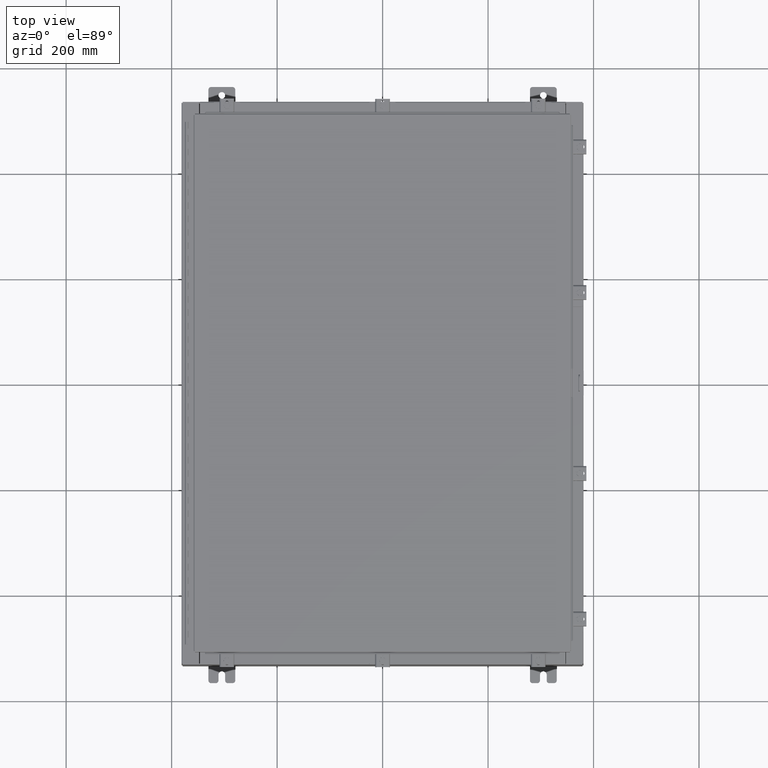
[diagram: clean part render]
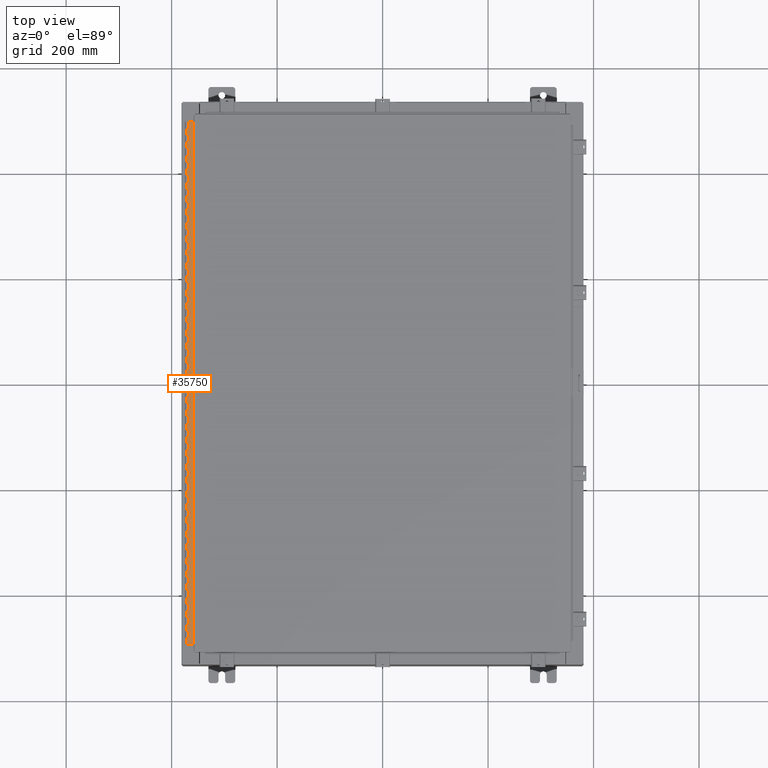
[diagram: same view with one face highlighted and labeled with its STEP entity id]
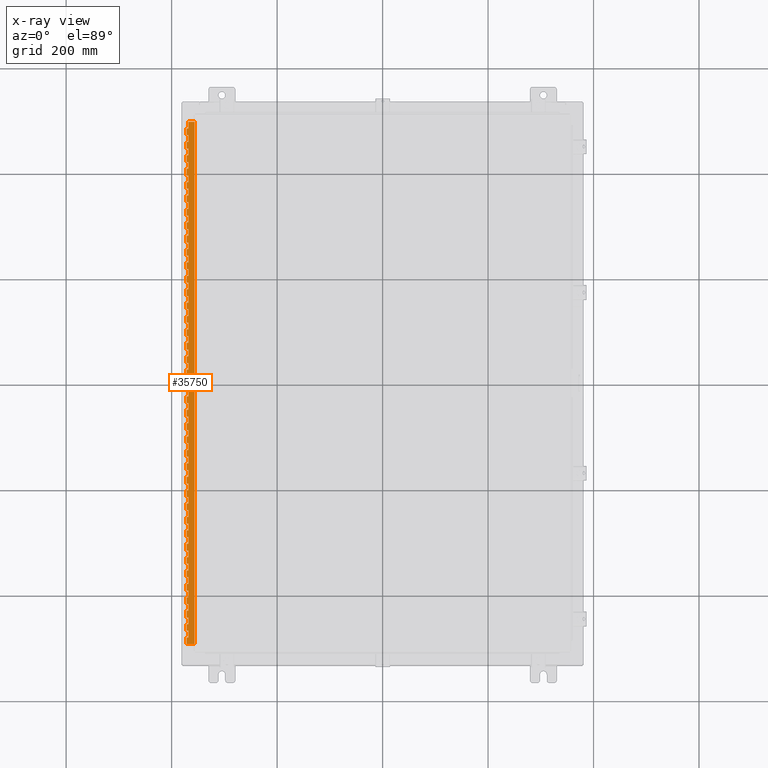
[diagram: x-ray of the same camera — body ghosted, the highlighted face saturated]
A machine part, top view. The second image highlights one B-rep face of the part: STEP entity #35750.
The next image is the same camera in x-ray: the body ghosted, the highlighted face saturated — about 0% of this face is hidden behind the body in this view.
In plain terms, the highlighted planar face has unit normal (-0, -0, 1).
Its self-contained STEP definition (entity closure, byte-faithful):
#9 = ORIENTED_EDGE ( 'NONE', *, *, #16332, .F. ) ;
#21 = VECTOR ( 'NONE', #11531, 39.37007874015748100 ) ;
#36 = DIRECTION ( 'NONE',  ( -3.389037039080723100E-015, -1.000000000000000000, 0.0000000000000000000 ) ) ;
#56 = DIRECTION ( 'NONE',  ( 0.0000000000000000000, -0.0000000000000000000, -1.000000000000000000 ) ) ;
#79 = DIRECTION ( 'NONE',  ( 0.0000000000000000000, -0.0000000000000000000, -1.000000000000000000 ) ) ;
#122 = LINE ( 'NONE', #21217, #22459 ) ;
#145 = VECTOR ( 'NONE', #37409, 39.37007874015748100 ) ;
#218 = ORIENTED_EDGE ( 'NONE', *, *, #26666, .F. ) ;
#260 = DIRECTION ( 'NONE',  ( 0.0000000000000000000, 0.0000000000000000000, 1.000000000000000000 ) ) ;
#281 = VECTOR ( 'NONE', #34463, 39.37007874015748100 ) ;
#361 = DIRECTION ( 'NONE',  ( -3.389037039080723100E-015, -1.000000000000000000, 0.0000000000000000000 ) ) ;
#384 = CARTESIAN_POINT ( 'NONE',  ( -0.6869999999999982800, 0.5504999999999997700, -7.499999999999999100 ) ) ;
#405 = VECTOR ( 'NONE', #26379, 39.37007874015748100 ) ;
#449 = DIRECTION ( 'NONE',  ( -3.389037039080723100E-015, -1.000000000000000000, 0.0000000000000000000 ) ) ;
#474 = LINE ( 'NONE', #40864, #28988 ) ;
#535 = CARTESIAN_POINT ( 'NONE',  ( -0.6869999999999982800, 0.5504999999999997700, -26.50000000000000400 ) ) ;
#548 = EDGE_CURVE ( 'NONE', #23219, #32864, #14186, .T. ) ;
#639 = CARTESIAN_POINT ( 'NONE',  ( -0.6869999999999982800, 0.5504999999999997700, -33.00000000000000000 ) ) ;
#686 = VECTOR ( 'NONE', #42443, 39.37007874015748100 ) ;
#760 = CARTESIAN_POINT ( 'NONE',  ( -0.6869999999999973900, 0.8004999999999995500, -6.000000000000000900 ) ) ;
#818 = DIRECTION ( 'NONE',  ( -3.389037039080723100E-015, -1.000000000000000000, 0.0000000000000000000 ) ) ;
#840 = VERTEX_POINT ( 'NONE', #47050 ) ;
#932 = VERTEX_POINT ( 'NONE', #46176 ) ;
#957 = VECTOR ( 'NONE', #24583, 39.37007874015748100 ) ;
#966 = VERTEX_POINT ( 'NONE', #47389 ) ;
#986 = LINE ( 'NONE', #6523, #39295 ) ;
#996 = VECTOR ( 'NONE', #28611, 39.37007874015748100 ) ;
#1032 = CARTESIAN_POINT ( 'NONE',  ( -0.6869999999999978300, 0.6754999999999996600, -0.5000000000000000000 ) ) ;
#1059 = CARTESIAN_POINT ( 'NONE',  ( -0.6869999999999982800, 0.5504999999999997700, -10.50000000000000000 ) ) ;
#1072 = LINE ( 'NONE', #6547, #9600 ) ;
#1093 = ORIENTED_EDGE ( 'NONE', *, *, #37461, .F. ) ;
#1214 = DIRECTION ( 'NONE',  ( 3.389037039080723100E-015, 1.000000000000000000, -0.0000000000000000000 ) ) ;
#1222 = ORIENTED_EDGE ( 'NONE', *, *, #14904, .F. ) ;
#1236 = ORIENTED_EDGE ( 'NONE', *, *, #27411, .F. ) ;
#1289 = VECTOR ( 'NONE', #4982, 39.37007874015748100 ) ;
#1362 = DIRECTION ( 'NONE',  ( 0.0000000000000000000, 0.0000000000000000000, 1.000000000000000000 ) ) ;
#1380 = VECTOR ( 'NONE', #22788, 39.37007874015748100 ) ;
#1424 = LINE ( 'NONE', #31433, #38580 ) ;
#1528 = EDGE_CURVE ( 'NONE', #11961, #10881, #2808, .T. ) ;
#1570 = DIRECTION ( 'NONE',  ( 0.0000000000000000000, 0.0000000000000000000, 1.000000000000000000 ) ) ;
#1692 = CARTESIAN_POINT ( 'NONE',  ( -0.6869999999999978300, 0.6754999999999996600, -34.50000000000000000 ) ) ;
#1697 = DIRECTION ( 'NONE',  ( 0.0000000000000000000, -0.0000000000000000000, -1.000000000000000000 ) ) ;
#1744 = VECTOR ( 'NONE', #6924, 39.37007874015748100 ) ;
#1780 = CARTESIAN_POINT ( 'NONE',  ( -0.6869999999999982800, 0.5504999999999997700, -12.49999999999999800 ) ) ;
#1806 = CARTESIAN_POINT ( 'NONE',  ( -0.6869999999999982800, 0.5504999999999997700, -32.50000000000000000 ) ) ;
#1818 = CARTESIAN_POINT ( 'NONE',  ( -0.6869999999999982800, 0.5504999999999997700, -13.50000000000000000 ) ) ;
#1819 = ORIENTED_EDGE ( 'NONE', *, *, #25330, .F. ) ;
#1909 = CARTESIAN_POINT ( 'NONE',  ( -0.6869999999999973900, 0.8004999999999995500, -20.00000000000000000 ) ) ;
#1983 = LINE ( 'NONE', #45307, #31689 ) ;
#2220 = LINE ( 'NONE', #24105, #20749 ) ;
#2318 = LINE ( 'NONE', #16349, #3909 ) ;
#2332 = ORIENTED_EDGE ( 'NONE', *, *, #33874, .T. ) ;
#2336 = CARTESIAN_POINT ( 'NONE',  ( -0.6869999999999982800, 0.5504999999999997700, -3.500000000000000000 ) ) ;
#2466 = CARTESIAN_POINT ( 'NONE',  ( -0.6869999999999978300, 0.6754999999999996600, -22.00000000000000000 ) ) ;
#2562 = CARTESIAN_POINT ( 'NONE',  ( -0.6869999999999978300, 0.6754999999999996600, -39.00000000000000000 ) ) ;
#2571 = ORIENTED_EDGE ( 'NONE', *, *, #45767, .F. ) ;
#2581 = CARTESIAN_POINT ( 'NONE',  ( -0.6869999999999978300, 0.6754999999999996600, -12.99999999999999800 ) ) ;
#2588 = ORIENTED_EDGE ( 'NONE', *, *, #9988, .F. ) ;
#2625 = VERTEX_POINT ( 'NONE', #25515 ) ;
#2645 = LINE ( 'NONE', #7317, #41080 ) ;
#2670 = VERTEX_POINT ( 'NONE', #31723 ) ;
#2702 = VERTEX_POINT ( 'NONE', #24706 ) ;
#2704 = VERTEX_POINT ( 'NONE', #24184 ) ;
#2721 = VECTOR ( 'NONE', #7507, 39.37007874015748100 ) ;
#2727 = CARTESIAN_POINT ( 'NONE',  ( -0.6869999999999982800, 0.5504999999999997700, -28.99999999999999600 ) ) ;
#2808 = LINE ( 'NONE', #20488, #44365 ) ;
#2860 = DIRECTION ( 'NONE',  ( 0.0000000000000000000, -0.0000000000000000000, -1.000000000000000000 ) ) ;
#2863 = CARTESIAN_POINT ( 'NONE',  ( -0.6869999999999978300, 0.6754999999999996600, -39.00000000000000000 ) ) ;
#2935 = EDGE_CURVE ( 'NONE', #29358, #6798, #6286, .T. ) ;
#3053 = DIRECTION ( 'NONE',  ( 3.389037039080723100E-015, 1.000000000000000000, -0.0000000000000000000 ) ) ;
#3153 = CARTESIAN_POINT ( 'NONE',  ( -0.6869999999999982800, 0.5504999999999997700, -17.00000000000000000 ) ) ;
#3194 = VECTOR ( 'NONE', #3554, 39.37007874015748100 ) ;
#3200 = DIRECTION ( 'NONE',  ( 0.0000000000000000000, -0.0000000000000000000, -1.000000000000000000 ) ) ;
#3201 = VECTOR ( 'NONE', #26048, 39.37007874015748100 ) ;
#3210 = CARTESIAN_POINT ( 'NONE',  ( -0.6869999999999982800, 0.5504999999999997700, -24.50000000000000000 ) ) ;
#3227 = CARTESIAN_POINT ( 'NONE',  ( -0.6869999999999982800, 0.5504999999999997700, -18.50000000000000000 ) ) ;
#3231 = CARTESIAN_POINT ( 'NONE',  ( -0.6869999999999982800, 0.5504999999999997700, -31.50000000000000400 ) ) ;
#3266 = CARTESIAN_POINT ( 'NONE',  ( -0.6869999999999978300, 0.6754999999999996600, -23.00000000000000000 ) ) ;
#3362 = VECTOR ( 'NONE', #18309, 39.37007874015748100 ) ;
#3525 = EDGE_CURVE ( 'NONE', #27103, #42481, #122, .T. ) ;
#3554 = DIRECTION ( 'NONE',  ( 3.389037039080723100E-015, 1.000000000000000000, -0.0000000000000000000 ) ) ;
#3665 = VERTEX_POINT ( 'NONE', #43167 ) ;
#3676 = CARTESIAN_POINT ( 'NONE',  ( -0.6869999999999973900, 0.8004999999999995500, -2.000000000000000000 ) ) ;
#3750 = ORIENTED_EDGE ( 'NONE', *, *, #47386, .F. ) ;
#3755 = EDGE_CURVE ( 'NONE', #37522, #46472, #4803, .T. ) ;
#3775 = VECTOR ( 'NONE', #35622, 39.37007874015748100 ) ;
#3777 = CARTESIAN_POINT ( 'NONE',  ( -0.6869999999999982800, 0.5504999999999997700, -37.50000000000000000 ) ) ;
#3871 = VERTEX_POINT ( 'NONE', #11163 ) ;
#3909 = VECTOR ( 'NONE', #449, 39.37007874015748100 ) ;
#3926 = ORIENTED_EDGE ( 'NONE', *, *, #16752, .F. ) ;
#3932 = VERTEX_POINT ( 'NONE', #32848 ) ;
#3940 = VECTOR ( 'NONE', #39847, 39.37007874015748100 ) ;
#3956 = LINE ( 'NONE', #43107, #9050 ) ;
#3981 = VERTEX_POINT ( 'NONE', #7984 ) ;
#4023 = ORIENTED_EDGE ( 'NONE', *, *, #44236, .F. ) ;
#4039 = ORIENTED_EDGE ( 'NONE', *, *, #45471, .F. ) ;
#4079 = CARTESIAN_POINT ( 'NONE',  ( -0.6869999999999973900, 0.8004999999999995500, -24.99999999999999600 ) ) ;
#4094 = ORIENTED_EDGE ( 'NONE', *, *, #14430, .F. ) ;
#4155 = CARTESIAN_POINT ( 'NONE',  ( -0.6869999999999978300, 0.6754999999999996600, -1.499999999999999800 ) ) ;
#4166 = VERTEX_POINT ( 'NONE', #37532 ) ;
#4172 = LINE ( 'NONE', #39879, #42676 ) ;
#4179 = LINE ( 'NONE', #42723, #44981 ) ;
#4219 = CARTESIAN_POINT ( 'NONE',  ( -0.6869999999999982800, 0.5504999999999997700, -15.50000000000000000 ) ) ;
#4268 = ORIENTED_EDGE ( 'NONE', *, *, #10355, .F. ) ;
#4299 = CARTESIAN_POINT ( 'NONE',  ( -0.6869999999999973900, 0.8004999999999995500, -15.50000000000000000 ) ) ;
#4331 = CARTESIAN_POINT ( 'NONE',  ( -0.6869999999999978300, 0.6754999999999996600, -38.00000000000000000 ) ) ;
#4477 = ORIENTED_EDGE ( 'NONE', *, *, #8412, .F. ) ;
#4514 = VERTEX_POINT ( 'NONE', #29078 ) ;
#4532 = LINE ( 'NONE', #13956, #47096 ) ;
#4629 = DIRECTION ( 'NONE',  ( -3.389037039080723100E-015, -1.000000000000000000, 0.0000000000000000000 ) ) ;
#4728 = EDGE_CURVE ( 'NONE', #12315, #2625, #24389, .T. ) ;
#4753 = DIRECTION ( 'NONE',  ( 3.389037039080723100E-015, 1.000000000000000000, -0.0000000000000000000 ) ) ;
#4779 = CARTESIAN_POINT ( 'NONE',  ( -0.6869999999999982800, 0.5504999999999997700, -20.50000000000000400 ) ) ;
#4803 = LINE ( 'NONE', #22915, #36117 ) ;
#4880 = LINE ( 'NONE', #31914, #3775 ) ;
#4937 = VECTOR ( 'NONE', #14628, 39.37007874015748100 ) ;
#4982 = DIRECTION ( 'NONE',  ( 3.389037039080723100E-015, 1.000000000000000000, -0.0000000000000000000 ) ) ;
#5001 = ORIENTED_EDGE ( 'NONE', *, *, #32925, .F. ) ;
#5044 = LINE ( 'NONE', #45716, #3940 ) ;
#5047 = CARTESIAN_POINT ( 'NONE',  ( -0.6869999999999978300, 0.6754999999999996600, -39.00000000000000000 ) ) ;
#5053 = CARTESIAN_POINT ( 'NONE',  ( -0.6869999999999978300, 0.6754999999999996600, -13.50000000000000000 ) ) ;
#5068 = VECTOR ( 'NONE', #17159, 39.37007874015748100 ) ;
#5099 = ORIENTED_EDGE ( 'NONE', *, *, #26012, .T. ) ;
#5112 = CARTESIAN_POINT ( 'NONE',  ( -0.6869999999999978300, 0.6754999999999996600, -34.00000000000000000 ) ) ;
#5139 = DIRECTION ( 'NONE',  ( 0.0000000000000000000, 0.0000000000000000000, 1.000000000000000000 ) ) ;
#5141 = VECTOR ( 'NONE', #15978, 39.37007874015748100 ) ;
#5146 = EDGE_CURVE ( 'NONE', #19628, #28661, #33529, .T. ) ;
#5211 = CARTESIAN_POINT ( 'NONE',  ( -0.6869999999999978300, 0.6754999999999996600, -11.50000000000000000 ) ) ;
#5218 = ORIENTED_EDGE ( 'NONE', *, *, #16458, .F. ) ;
#5259 = VERTEX_POINT ( 'NONE', #45172 ) ;
#5304 = CARTESIAN_POINT ( 'NONE',  ( -0.6869999999999978300, 0.6754999999999996600, -33.00000000000000000 ) ) ;
#5315 = CARTESIAN_POINT ( 'NONE',  ( -0.6869999999999973900, 0.8004999999999995500, -10.50000000000000000 ) ) ;
#5349 = EDGE_CURVE ( 'NONE', #16638, #31150, #20674, .T. ) ;
#5360 = ORIENTED_EDGE ( 'NONE', *, *, #44480, .F. ) ;
#5366 = ORIENTED_EDGE ( 'NONE', *, *, #15701, .F. ) ;
#5375 = DIRECTION ( 'NONE',  ( 0.0000000000000000000, 0.0000000000000000000, 1.000000000000000000 ) ) ;
#5430 = DIRECTION ( 'NONE',  ( 3.389037039080723100E-015, 1.000000000000000000, -0.0000000000000000000 ) ) ;
#5490 = VECTOR ( 'NONE', #29254, 39.37007874015748100 ) ;
#5541 = EDGE_CURVE ( 'NONE', #21171, #19266, #24182, .T. ) ;
#5551 = ORIENTED_EDGE ( 'NONE', *, *, #31623, .F. ) ;
#5562 = LINE ( 'NONE', #7006, #5842 ) ;
#5617 = EDGE_CURVE ( 'NONE', #31211, #26036, #30814, .T. ) ;
#5648 = DIRECTION ( 'NONE',  ( 0.0000000000000000000, -0.0000000000000000000, -1.000000000000000000 ) ) ;
#5842 = VECTOR ( 'NONE', #20742, 39.37007874015748100 ) ;
#5845 = DIRECTION ( 'NONE',  ( 0.0000000000000000000, -0.0000000000000000000, -1.000000000000000000 ) ) ;
#5864 = CARTESIAN_POINT ( 'NONE',  ( -0.6869999999999978300, 0.6754999999999996600, -17.50000000000000000 ) ) ;
#5873 = DIRECTION ( 'NONE',  ( 0.0000000000000000000, -0.0000000000000000000, -1.000000000000000000 ) ) ;
#5876 = LINE ( 'NONE', #45957, #43266 ) ;
#5917 = VECTOR ( 'NONE', #16127, 39.37007874015748100 ) ;
#5919 = VECTOR ( 'NONE', #37648, 39.37007874015748100 ) ;
#5931 = LINE ( 'NONE', #19986, #24034 ) ;
#6044 = EDGE_CURVE ( 'NONE', #9715, #6174, #48045, .T. ) ;
#6045 = VECTOR ( 'NONE', #6149, 39.37007874015748100 ) ;
#6135 = LINE ( 'NONE', #33446, #44707 ) ;
#6141 = ORIENTED_EDGE ( 'NONE', *, *, #31949, .T. ) ;
#6149 = DIRECTION ( 'NONE',  ( 0.0000000000000000000, 0.0000000000000000000, 1.000000000000000000 ) ) ;
#6174 = VERTEX_POINT ( 'NONE', #535 ) ;
#6270 = EDGE_CURVE ( 'NONE', #12047, #23622, #3956, .T. ) ;
#6286 = LINE ( 'NONE', #16900, #40842 ) ;
#6307 = LINE ( 'NONE', #31060, #5141 ) ;
#6356 = CARTESIAN_POINT ( 'NONE',  ( -0.6869999999999978300, 0.6754999999999996600, -39.00000000000000000 ) ) ;
#6366 = VECTOR ( 'NONE', #38459, 39.37007874015748100 ) ;
#6376 = VECTOR ( 'NONE', #24378, 39.37007874015748100 ) ;
#6378 = EDGE_CURVE ( 'NONE', #10881, #21171, #5562, .T. ) ;
#6396 = LINE ( 'NONE', #12981, #15073 ) ;
#6441 = DIRECTION ( 'NONE',  ( 0.0000000000000000000, -0.0000000000000000000, -1.000000000000000000 ) ) ;
#6468 = DIRECTION ( 'NONE',  ( 3.389037039080723100E-015, 1.000000000000000000, -0.0000000000000000000 ) ) ;
#6523 = CARTESIAN_POINT ( 'NONE',  ( -0.6869999999999973900, 0.8004999999999995500, -29.99999999999999600 ) ) ;
#6547 = CARTESIAN_POINT ( 'NONE',  ( -0.6869999999999973900, 0.8004999999999995500, -11.50000000000000000 ) ) ;
#6612 = VECTOR ( 'NONE', #19148, 39.37007874015748100 ) ;
#6613 = VECTOR ( 'NONE', #28377, 39.37007874015748100 ) ;
#6662 = CARTESIAN_POINT ( 'NONE',  ( -0.6869999999999982800, 0.5504999999999997700, -2.500000000000000000 ) ) ;
#6667 = CARTESIAN_POINT ( 'NONE',  ( -0.6869999999999998300, 0.07549999999999991400, -39.00000000000000000 ) ) ;
#6699 = VERTEX_POINT ( 'NONE', #24724 ) ;
#6798 = VERTEX_POINT ( 'NONE', #2581 ) ;
#6808 = ORIENTED_EDGE ( 'NONE', *, *, #32870, .T. ) ;
#6824 = ORIENTED_EDGE ( 'NONE', *, *, #29809, .F. ) ;
#6852 = CARTESIAN_POINT ( 'NONE',  ( -0.6869999999999982800, 0.5504999999999997700, -30.50000000000000400 ) ) ;
#6858 = CARTESIAN_POINT ( 'NONE',  ( -0.6869999999999982800, 0.5504999999999997700, -7.000000000000000000 ) ) ;
#6918 = ORIENTED_EDGE ( 'NONE', *, *, #17318, .F. ) ;
#6924 = DIRECTION ( 'NONE',  ( 3.369016658928398200E-015, 1.000000000000000000, 0.0000000000000000000 ) ) ;
#6982 = CARTESIAN_POINT ( 'NONE',  ( -0.6869999999999978300, 0.6754999999999996600, -39.00000000000000000 ) ) ;
#7006 = CARTESIAN_POINT ( 'NONE',  ( -0.6869999999999982800, 0.5504999999999997700, -22.50000000000000000 ) ) ;
#7126 = DIRECTION ( 'NONE',  ( 0.0000000000000000000, -0.0000000000000000000, -1.000000000000000000 ) ) ;
#7141 = VECTOR ( 'NONE', #21277, 39.37007874015748100 ) ;
#7147 = LINE ( 'NONE', #33617, #45738 ) ;
#7177 = CARTESIAN_POINT ( 'NONE',  ( -0.6869999999999978300, 0.6754999999999996600, -28.99999999999999600 ) ) ;
#7188 = CARTESIAN_POINT ( 'NONE',  ( -0.6869999999999982800, 0.5504999999999997700, -21.50000000000000400 ) ) ;
#7217 = CARTESIAN_POINT ( 'NONE',  ( -0.6869999999999982800, 0.5504999999999997700, -2.500000000000000000 ) ) ;
#7227 = VERTEX_POINT ( 'NONE', #3231 ) ;
#7283 = ORIENTED_EDGE ( 'NONE', *, *, #20696, .F. ) ;
#7317 = CARTESIAN_POINT ( 'NONE',  ( -0.6869999999999978300, 0.6754999999999996600, -39.00000000000000000 ) ) ;
#7381 = VERTEX_POINT ( 'NONE', #22443 ) ;
#7418 = EDGE_CURVE ( 'NONE', #37522, #39650, #38905, .T. ) ;
#7496 = LINE ( 'NONE', #31041, #39381 ) ;
#7507 = DIRECTION ( 'NONE',  ( 3.389037039080723100E-015, 1.000000000000000000, -0.0000000000000000000 ) ) ;
#7653 = LINE ( 'NONE', #30681, #26477 ) ;
#7736 = VERTEX_POINT ( 'NONE', #42129 ) ;
#7759 = VERTEX_POINT ( 'NONE', #1818 ) ;
#7795 = DIRECTION ( 'NONE',  ( -3.389037039080723100E-015, -1.000000000000000000, 0.0000000000000000000 ) ) ;
#7809 = ORIENTED_EDGE ( 'NONE', *, *, #10248, .T. ) ;
#7813 = EDGE_CURVE ( 'NONE', #7736, #33824, #38030, .T. ) ;
#7867 = VECTOR ( 'NONE', #16219, 39.37007874015748100 ) ;
#7876 = VERTEX_POINT ( 'NONE', #7177 ) ;
#7894 = CARTESIAN_POINT ( 'NONE',  ( -0.6869999999999973900, 0.8004999999999995500, -13.50000000000000000 ) ) ;
#7918 = CARTESIAN_POINT ( 'NONE',  ( -0.6869999999999982800, 0.5504999999999997700, -19.50000000000000000 ) ) ;
#7930 = VERTEX_POINT ( 'NONE', #46974 ) ;
#7984 = CARTESIAN_POINT ( 'NONE',  ( -0.6869999999999982800, 0.5504999999999997700, -16.50000000000000000 ) ) ;
#8033 = VERTEX_POINT ( 'NONE', #48020 ) ;
#8051 = VECTOR ( 'NONE', #5873, 39.37007874015748100 ) ;
#8077 = CARTESIAN_POINT ( 'NONE',  ( -0.6869999999999973900, 0.8004999999999995500, -31.00000000000000000 ) ) ;
#8216 = CARTESIAN_POINT ( 'NONE',  ( -0.6869999999999982800, 0.5504999999999997700, -16.00000000000000000 ) ) ;
#8234 = VECTOR ( 'NONE', #40966, 39.37007874015748100 ) ;
#8317 = VECTOR ( 'NONE', #35994, 39.37007874015748100 ) ;
#8388 = VERTEX_POINT ( 'NONE', #20141 ) ;
#8412 = EDGE_CURVE ( 'NONE', #25350, #3932, #4532, .T. ) ;
#8422 = LINE ( 'NONE', #25103, #24857 ) ;
#8456 = ORIENTED_EDGE ( 'NONE', *, *, #40425, .F. ) ;
#8516 = EDGE_CURVE ( 'NONE', #31810, #966, #23989, .T. ) ;
#8562 = VECTOR ( 'NONE', #47869, 39.37007874015748100 ) ;
#8580 = CARTESIAN_POINT ( 'NONE',  ( -0.6869999999999982800, 0.5504999999999997700, -11.99999999999999800 ) ) ;
#8636 = VERTEX_POINT ( 'NONE', #11176 ) ;
#8805 = LINE ( 'NONE', #16339, #37475 ) ;
#8852 = LINE ( 'NONE', #19257, #47513 ) ;
#8917 = EDGE_CURVE ( 'NONE', #36144, #44801, #36377, .T. ) ;
#8921 = DIRECTION ( 'NONE',  ( 3.389037039080723100E-015, 1.000000000000000000, -0.0000000000000000000 ) ) ;
#9016 = CARTESIAN_POINT ( 'NONE',  ( -0.6869999999999982800, 0.5504999999999997700, -39.00000000000000000 ) ) ;
#9050 = VECTOR ( 'NONE', #15983, 39.37007874015748100 ) ;
#9061 = LINE ( 'NONE', #5315, #27914 ) ;
#9114 = ORIENTED_EDGE ( 'NONE', *, *, #38212, .T. ) ;
#9209 = CARTESIAN_POINT ( 'NONE',  ( -0.6869999999999982800, 0.5504999999999997700, -35.50000000000000000 ) ) ;
#9227 = EDGE_CURVE ( 'NONE', #11413, #34624, #47954, .T. ) ;
#9319 = DIRECTION ( 'NONE',  ( 0.0000000000000000000, 0.0000000000000000000, 1.000000000000000000 ) ) ;
#9342 = LINE ( 'NONE', #42391, #48009 ) ;
#9348 = DIRECTION ( 'NONE',  ( 0.0000000000000000000, 0.0000000000000000000, 1.000000000000000000 ) ) ;
#9386 = ORIENTED_EDGE ( 'NONE', *, *, #42683, .T. ) ;
#9400 = ORIENTED_EDGE ( 'NONE', *, *, #44366, .F. ) ;
#9468 = LINE ( 'NONE', #43467, #46929 ) ;
#9514 = VECTOR ( 'NONE', #34827, 39.37007874015748100 ) ;
#9532 = DIRECTION ( 'NONE',  ( 0.0000000000000000000, -0.0000000000000000000, -1.000000000000000000 ) ) ;
#9542 = CARTESIAN_POINT ( 'NONE',  ( -0.6869999999999978300, 0.6754999999999996600, -14.49999999999999800 ) ) ;
#9600 = VECTOR ( 'NONE', #17688, 39.37007874015748100 ) ;
#9609 = ORIENTED_EDGE ( 'NONE', *, *, #16828, .F. ) ;
#9621 = CARTESIAN_POINT ( 'NONE',  ( -0.6869999999999973900, 0.8004999999999995500, -23.00000000000000000 ) ) ;
#9634 = LINE ( 'NONE', #21473, #38258 ) ;
#9652 = LINE ( 'NONE', #19633, #16585 ) ;
#9715 = VERTEX_POINT ( 'NONE', #12648 ) ;
#9729 = CARTESIAN_POINT ( 'NONE',  ( -0.6869999999999973900, 0.8004999999999995500, -12.99999999999999800 ) ) ;
#9770 = ORIENTED_EDGE ( 'NONE', *, *, #15706, .T. ) ;
#9786 = VECTOR ( 'NONE', #32352, 39.37007874015748100 ) ;
#9908 = EDGE_CURVE ( 'NONE', #30243, #3981, #2318, .T. ) ;
#9928 = LINE ( 'NONE', #28470, #1380 ) ;
#9980 = ORIENTED_EDGE ( 'NONE', *, *, #16109, .F. ) ;
#9988 = EDGE_CURVE ( 'NONE', #23938, #39896, #25360, .T. ) ;
#10025 = CARTESIAN_POINT ( 'NONE',  ( -0.6869999999999978300, 0.6754999999999996600, -36.50000000000000000 ) ) ;
#10056 = EDGE_CURVE ( 'NONE', #39424, #6798, #16067, .T. ) ;
#10061 = DIRECTION ( 'NONE',  ( 0.0000000000000000000, 0.0000000000000000000, 1.000000000000000000 ) ) ;
#10093 = LINE ( 'NONE', #14922, #405 ) ;
#10197 = DIRECTION ( 'NONE',  ( 0.0000000000000000000, -0.0000000000000000000, -1.000000000000000000 ) ) ;
#10205 = VERTEX_POINT ( 'NONE', #12575 ) ;
#10224 = VECTOR ( 'NONE', #46088, 39.37007874015748100 ) ;
#10235 = ORIENTED_EDGE ( 'NONE', *, *, #45603, .T. ) ;
#10248 = EDGE_CURVE ( 'NONE', #11413, #12688, #23959, .T. ) ;
#10355 = EDGE_CURVE ( 'NONE', #43654, #46855, #21062, .T. ) ;
#10397 = ORIENTED_EDGE ( 'NONE', *, *, #35892, .F. ) ;
#10432 = CARTESIAN_POINT ( 'NONE',  ( -0.6869999999999982800, 0.5504999999999997700, -8.500000000000000000 ) ) ;
#10436 = VERTEX_POINT ( 'NONE', #35931 ) ;
#10460 = ORIENTED_EDGE ( 'NONE', *, *, #41797, .T. ) ;
#10507 = VERTEX_POINT ( 'NONE', #18356 ) ;
#10578 = VERTEX_POINT ( 'NONE', #7188 ) ;
#10641 = VECTOR ( 'NONE', #44117, 39.37007874015748100 ) ;
#10696 = CARTESIAN_POINT ( 'NONE',  ( -0.6869999999999982800, 0.5504999999999997700, -32.50000000000000000 ) ) ;
#10789 = DIRECTION ( 'NONE',  ( 0.0000000000000000000, -0.0000000000000000000, -1.000000000000000000 ) ) ;
#10810 = CARTESIAN_POINT ( 'NONE',  ( -0.6869999999999978300, 0.6754999999999996600, -14.99999999999999800 ) ) ;
#10875 = VECTOR ( 'NONE', #29826, 39.37007874015748100 ) ;
#10881 = VERTEX_POINT ( 'NONE', #45034 ) ;
#10894 = VECTOR ( 'NONE', #37349, 39.37007874015748100 ) ;
#10919 = ORIENTED_EDGE ( 'NONE', *, *, #8516, .F. ) ;
#10943 = EDGE_CURVE ( 'NONE', #36950, #7876, #39312, .T. ) ;
#11031 = VERTEX_POINT ( 'NONE', #28793 ) ;
#11068 = LINE ( 'NONE', #29551, #31043 ) ;
#11079 = EDGE_CURVE ( 'NONE', #12047, #40722, #30717, .T. ) ;
#11140 = VERTEX_POINT ( 'NONE', #31288 ) ;
#11150 = LINE ( 'NONE', #21783, #19865 ) ;
#11153 = CARTESIAN_POINT ( 'NONE',  ( -0.6869999999999982800, 0.5504999999999997700, -25.50000000000000400 ) ) ;
#11157 = VECTOR ( 'NONE', #16441, 39.37007874015748100 ) ;
#11163 = CARTESIAN_POINT ( 'NONE',  ( -0.6869999999999998300, 0.07549999999999991400, -39.00000000000000000 ) ) ;
#11166 = VECTOR ( 'NONE', #37426, 39.37007874015748100 ) ;
#11176 = CARTESIAN_POINT ( 'NONE',  ( -0.6869999999999982800, 0.5504999999999997700, -28.00000000000000000 ) ) ;
#11208 = LINE ( 'NONE', #27235, #19932 ) ;
#11212 = LINE ( 'NONE', #36160, #39814 ) ;
#11239 = CARTESIAN_POINT ( 'NONE',  ( -0.6869999999999973900, 0.8004999999999995500, -20.50000000000000400 ) ) ;
#11240 = CARTESIAN_POINT ( 'NONE',  ( -0.6869999999999973900, 0.8004999999999995500, -0.5000000000000000000 ) ) ;
#11283 = ORIENTED_EDGE ( 'NONE', *, *, #47827, .T. ) ;
#11413 = VERTEX_POINT ( 'NONE', #18771 ) ;
#11424 = CARTESIAN_POINT ( 'NONE',  ( -0.6869999999999982800, 0.5504999999999997700, -5.500000000000000000 ) ) ;
#11443 = CARTESIAN_POINT ( 'NONE',  ( -0.6869999999999978300, 0.6754999999999996600, -21.50000000000000400 ) ) ;
#11465 = ORIENTED_EDGE ( 'NONE', *, *, #9908, .F. ) ;
#11531 = DIRECTION ( 'NONE',  ( 3.389037039080723100E-015, 1.000000000000000000, -0.0000000000000000000 ) ) ;
#11745 = DIRECTION ( 'NONE',  ( 0.0000000000000000000, 0.0000000000000000000, 1.000000000000000000 ) ) ;
#11781 = CARTESIAN_POINT ( 'NONE',  ( -0.6869999999999998300, 0.07549999999999991400, 0.0000000000000000000 ) ) ;
#11789 = LINE ( 'NONE', #29253, #10641 ) ;
#11831 = DIRECTION ( 'NONE',  ( -3.389037039080723100E-015, -1.000000000000000000, 0.0000000000000000000 ) ) ;
#11872 = DIRECTION ( 'NONE',  ( 0.0000000000000000000, -0.0000000000000000000, -1.000000000000000000 ) ) ;
#11961 = VERTEX_POINT ( 'NONE', #28906 ) ;
#12047 = VERTEX_POINT ( 'NONE', #46935 ) ;
#12133 = ORIENTED_EDGE ( 'NONE', *, *, #47430, .F. ) ;
#12307 = ORIENTED_EDGE ( 'NONE', *, *, #37053, .T. ) ;
#12315 = VERTEX_POINT ( 'NONE', #29842 ) ;
#12350 = ORIENTED_EDGE ( 'NONE', *, *, #23334, .F. ) ;
#12420 = EDGE_CURVE ( 'NONE', #7759, #14724, #27338, .T. ) ;
#12430 = VECTOR ( 'NONE', #45754, 39.37007874015748100 ) ;
#12508 = VERTEX_POINT ( 'NONE', #20171 ) ;
#12575 = CARTESIAN_POINT ( 'NONE',  ( -0.6869999999999982800, 0.5504999999999997700, -14.49999999999999800 ) ) ;
#12589 = ORIENTED_EDGE ( 'NONE', *, *, #19965, .F. ) ;
#12590 = LINE ( 'NONE', #29442, #1744 ) ;
#12592 = ORIENTED_EDGE ( 'NONE', *, *, #24010, .F. ) ;
#12601 = ORIENTED_EDGE ( 'NONE', *, *, #34591, .F. ) ;
#12648 = CARTESIAN_POINT ( 'NONE',  ( -0.6869999999999978300, 0.6754999999999996600, -26.50000000000000400 ) ) ;
#12662 = CARTESIAN_POINT ( 'NONE',  ( -0.6869999999999973900, 0.8004999999999995500, -23.99999999999999600 ) ) ;
#12688 = VERTEX_POINT ( 'NONE', #48004 ) ;
#12698 = CARTESIAN_POINT ( 'NONE',  ( -0.6869999999999982800, 0.5504999999999997700, -20.00000000000000000 ) ) ;
#12723 = VECTOR ( 'NONE', #43142, 39.37007874015748100 ) ;
#12737 = CARTESIAN_POINT ( 'NONE',  ( -0.6869999999999973900, 0.8004999999999995500, -8.000000000000000000 ) ) ;
#12853 = DIRECTION ( 'NONE',  ( 0.0000000000000000000, -0.0000000000000000000, -1.000000000000000000 ) ) ;
#12883 = VERTEX_POINT ( 'NONE', #32256 ) ;
#12914 = CARTESIAN_POINT ( 'NONE',  ( -0.6869999999999978300, 0.6754999999999996600, -3.500000000000000000 ) ) ;
#12921 = VERTEX_POINT ( 'NONE', #2727 ) ;
#12981 = CARTESIAN_POINT ( 'NONE',  ( -0.6869999999999982800, 0.5504999999999997700, -17.50000000000000000 ) ) ;
#12982 = VECTOR ( 'NONE', #39428, 39.37007874015748100 ) ;
#13001 = DIRECTION ( 'NONE',  ( 3.369016658928398200E-015, 1.000000000000000000, 0.0000000000000000000 ) ) ;
#13058 = EDGE_CURVE ( 'NONE', #40076, #7227, #23688, .T. ) ;
#13066 = CARTESIAN_POINT ( 'NONE',  ( -0.6869999999999973900, 0.8004999999999995500, -27.00000000000000000 ) ) ;
#13086 = LINE ( 'NONE', #42414, #31957 ) ;
#13128 = VECTOR ( 'NONE', #29387, 39.37007874015748100 ) ;
#13238 = VERTEX_POINT ( 'NONE', #42931 ) ;
#13288 = EDGE_CURVE ( 'NONE', #14314, #12883, #31515, .T. ) ;
#13324 = EDGE_CURVE ( 'NONE', #32864, #31150, #7496, .T. ) ;
#13364 = CARTESIAN_POINT ( 'NONE',  ( -0.6869999999999978300, 0.6754999999999996600, -23.99999999999999600 ) ) ;
#13384 = DIRECTION ( 'NONE',  ( 1.000000000000000000, -3.369016658928398200E-015, 0.0000000000000000000 ) ) ;
#13435 = CARTESIAN_POINT ( 'NONE',  ( -0.6869999999999973900, 0.8004999999999995500, -12.49999999999999800 ) ) ;
#13448 = CARTESIAN_POINT ( 'NONE',  ( -0.6869999999999982800, 0.5504999999999997700, -21.00000000000000000 ) ) ;
#13524 = LINE ( 'NONE', #22202, #42240 ) ;
#13531 = LINE ( 'NONE', #31183, #14697 ) ;
#13556 = EDGE_CURVE ( 'NONE', #26954, #10578, #9652, .T. ) ;
#13579 = VERTEX_POINT ( 'NONE', #25724 ) ;
#13658 = CARTESIAN_POINT ( 'NONE',  ( -0.6869999999999978300, 0.6754999999999996600, -32.00000000000000000 ) ) ;
#13672 = CARTESIAN_POINT ( 'NONE',  ( -0.6869999999999978300, 0.6754999999999996600, -39.00000000000000000 ) ) ;
#13710 = VERTEX_POINT ( 'NONE', #36367 ) ;
#13721 = LINE ( 'NONE', #28950, #44789 ) ;
#13728 = CARTESIAN_POINT ( 'NONE',  ( -0.6869999999999973900, 0.8004999999999995500, -33.00000000000000000 ) ) ;
#13833 = DIRECTION ( 'NONE',  ( 0.0000000000000000000, 0.0000000000000000000, 1.000000000000000000 ) ) ;
#13872 = CARTESIAN_POINT ( 'NONE',  ( -0.6869999999999978300, 0.6754999999999996600, -39.00000000000000000 ) ) ;
#13940 = VECTOR ( 'NONE', #9319, 39.37007874015748100 ) ;
#13956 = CARTESIAN_POINT ( 'NONE',  ( -0.6870000000000022800, -0.6245000000000003900, 0.0000000000000000000 ) ) ;
#14064 = DIRECTION ( 'NONE',  ( 0.0000000000000000000, 0.0000000000000000000, 1.000000000000000000 ) ) ;
#14186 = LINE ( 'NONE', #7217, #48065 ) ;
#14292 = VERTEX_POINT ( 'NONE', #40220 ) ;
#14314 = VERTEX_POINT ( 'NONE', #16103 ) ;
#14430 = EDGE_CURVE ( 'NONE', #18077, #8388, #23872, .T. ) ;
#14518 = CARTESIAN_POINT ( 'NONE',  ( -0.6869999999999982800, 0.5504999999999997700, -23.50000000000000000 ) ) ;
#14579 = CARTESIAN_POINT ( 'NONE',  ( -0.6869999999999978300, 0.6754999999999996600, -39.00000000000000000 ) ) ;
#14606 = VERTEX_POINT ( 'NONE', #10696 ) ;
#14622 = LINE ( 'NONE', #33133, #43320 ) ;
#14628 = DIRECTION ( 'NONE',  ( -3.389037039080723100E-015, -1.000000000000000000, 0.0000000000000000000 ) ) ;
#14659 = LINE ( 'NONE', #33317, #15815 ) ;
#14685 = EDGE_CURVE ( 'NONE', #7930, #31810, #39432, .T. ) ;
#14697 = VECTOR ( 'NONE', #23565, 39.37007874015748100 ) ;
#14724 = VERTEX_POINT ( 'NONE', #28809 ) ;
#14728 = CARTESIAN_POINT ( 'NONE',  ( -0.6869999999999973900, 0.8004999999999995500, -5.000000000000000000 ) ) ;
#14755 = DIRECTION ( 'NONE',  ( 0.0000000000000000000, 0.0000000000000000000, 1.000000000000000000 ) ) ;
#14788 = VERTEX_POINT ( 'NONE', #18195 ) ;
#14791 = CARTESIAN_POINT ( 'NONE',  ( -0.6869999999999978300, 0.6754999999999996600, -4.500000000000000000 ) ) ;
#14799 = VECTOR ( 'NONE', #34302, 39.37007874015748100 ) ;
#14825 = CARTESIAN_POINT ( 'NONE',  ( -0.6869999999999982800, 0.5504999999999997700, -1.000000000000000000 ) ) ;
#14904 = EDGE_CURVE ( 'NONE', #25772, #7736, #24764, .T. ) ;
#14922 = CARTESIAN_POINT ( 'NONE',  ( -0.6869999999999978300, 0.6754999999999996600, -39.00000000000000000 ) ) ;
#14996 = DIRECTION ( 'NONE',  ( 0.0000000000000000000, -0.0000000000000000000, -1.000000000000000000 ) ) ;
#15040 = VECTOR ( 'NONE', #40037, 39.37007874015748100 ) ;
#15073 = VECTOR ( 'NONE', #39152, 39.37007874015748100 ) ;
#15074 = CARTESIAN_POINT ( 'NONE',  ( -0.6869999999999973900, 0.8004999999999995500, -6.499999999999999100 ) ) ;
#15075 = VERTEX_POINT ( 'NONE', #6858 ) ;
#15102 = VERTEX_POINT ( 'NONE', #46943 ) ;
#15121 = LINE ( 'NONE', #34736, #13940 ) ;
#15123 = EDGE_CURVE ( 'NONE', #39650, #14314, #15639, .T. ) ;
#15135 = LINE ( 'NONE', #22763, #23562 ) ;
#15230 = AXIS2_PLACEMENT_3D ( 'NONE', #28445, #13384, #39577 ) ;
#15270 = ORIENTED_EDGE ( 'NONE', *, *, #45804, .F. ) ;
#15316 = EDGE_CURVE ( 'NONE', #16081, #24835, #18605, .T. ) ;
#15336 = VERTEX_POINT ( 'NONE', #9542 ) ;
#15337 = CARTESIAN_POINT ( 'NONE',  ( -0.6869999999999973900, 0.8004999999999995500, -16.00000000000000000 ) ) ;
#15391 = LINE ( 'NONE', #22961, #44103 ) ;
#15443 = ORIENTED_EDGE ( 'NONE', *, *, #6378, .F. ) ;
#15639 = LINE ( 'NONE', #38095, #281 ) ;
#15663 = CARTESIAN_POINT ( 'NONE',  ( -0.6869999999999978300, 0.6754999999999996600, -39.00000000000000000 ) ) ;
#15701 = EDGE_CURVE ( 'NONE', #28863, #36644, #27599, .T. ) ;
#15706 = EDGE_CURVE ( 'NONE', #7930, #11031, #4179, .T. ) ;
#15815 = VECTOR ( 'NONE', #12853, 39.37007874015748100 ) ;
#15856 = CARTESIAN_POINT ( 'NONE',  ( -0.6869999999999982800, 0.5504999999999997700, -22.00000000000000000 ) ) ;
#15892 = CARTESIAN_POINT ( 'NONE',  ( -0.6869999999999982800, 0.5504999999999997700, -18.50000000000000000 ) ) ;
#15935 = LINE ( 'NONE', #21881, #44665 ) ;
#15978 = DIRECTION ( 'NONE',  ( 0.0000000000000000000, 0.0000000000000000000, 1.000000000000000000 ) ) ;
#15983 = DIRECTION ( 'NONE',  ( 0.0000000000000000000, 0.0000000000000000000, 1.000000000000000000 ) ) ;
#16045 = VECTOR ( 'NONE', #43667, 39.37007874015748100 ) ;
#16067 = LINE ( 'NONE', #9729, #1289 ) ;
#16081 = VERTEX_POINT ( 'NONE', #30706 ) ;
#16103 = CARTESIAN_POINT ( 'NONE',  ( -0.6869999999999982800, 0.5504999999999997700, -31.00000000000000000 ) ) ;
#16109 = EDGE_CURVE ( 'NONE', #13579, #14292, #46292, .T. ) ;
#16127 = DIRECTION ( 'NONE',  ( 0.0000000000000000000, -0.0000000000000000000, -1.000000000000000000 ) ) ;
#16205 = LINE ( 'NONE', #16758, #6366 ) ;
#16219 = DIRECTION ( 'NONE',  ( 0.0000000000000000000, 0.0000000000000000000, 1.000000000000000000 ) ) ;
#16329 = DIRECTION ( 'NONE',  ( -3.389037039080723100E-015, -1.000000000000000000, 0.0000000000000000000 ) ) ;
#16332 = EDGE_CURVE ( 'NONE', #16461, #41106, #24082, .T. ) ;
#16334 = VECTOR ( 'NONE', #30020, 39.37007874015748100 ) ;
#16339 = CARTESIAN_POINT ( 'NONE',  ( -0.6869999999999978300, 0.6754999999999996600, -39.00000000000000000 ) ) ;
#16341 = EDGE_CURVE ( 'NONE', #31817, #35175, #26607, .T. ) ;
#16349 = CARTESIAN_POINT ( 'NONE',  ( -0.6869999999999973900, 0.8004999999999995500, -16.50000000000000000 ) ) ;
#16357 = DIRECTION ( 'NONE',  ( 0.0000000000000000000, 0.0000000000000000000, 1.000000000000000000 ) ) ;
#16395 = ORIENTED_EDGE ( 'NONE', *, *, #14685, .F. ) ;
#16441 = DIRECTION ( 'NONE',  ( 3.389037039080723100E-015, 1.000000000000000000, -0.0000000000000000000 ) ) ;
#16447 = LINE ( 'NONE', #30442, #6612 ) ;
#16458 = EDGE_CURVE ( 'NONE', #40230, #14606, #28268, .T. ) ;
#16461 = VERTEX_POINT ( 'NONE', #46636 ) ;
#16490 = VECTOR ( 'NONE', #361, 39.37007874015748100 ) ;
#16512 = ORIENTED_EDGE ( 'NONE', *, *, #32611, .F. ) ;
#16533 = EDGE_CURVE ( 'NONE', #41747, #26643, #5931, .T. ) ;
#16569 = CARTESIAN_POINT ( 'NONE',  ( -0.6869999999999982800, 0.5504999999999997700, -12.99999999999999800 ) ) ;
#16585 = VECTOR ( 'NONE', #24197, 39.37007874015748100 ) ;
#16638 = VERTEX_POINT ( 'NONE', #12914 ) ;
#16645 = DIRECTION ( 'NONE',  ( 0.0000000000000000000, -0.0000000000000000000, -1.000000000000000000 ) ) ;
#16653 = VERTEX_POINT ( 'NONE', #9016 ) ;
#16681 = EDGE_CURVE ( 'NONE', #28486, #2670, #27558, .T. ) ;
#16752 = EDGE_CURVE ( 'NONE', #14788, #840, #15135, .T. ) ;
#16757 = ORIENTED_EDGE ( 'NONE', *, *, #24638, .T. ) ;
#16758 = CARTESIAN_POINT ( 'NONE',  ( -0.6869999999999978300, 0.6754999999999996600, -39.00000000000000000 ) ) ;
#16760 = LINE ( 'NONE', #39492, #8051 ) ;
#16798 = VECTOR ( 'NONE', #48146, 39.37007874015748100 ) ;
#16828 = EDGE_CURVE ( 'NONE', #31211, #17605, #39013, .T. ) ;
#16832 = CARTESIAN_POINT ( 'NONE',  ( -0.6869999999999978300, 0.6754999999999996600, -6.499999999999999100 ) ) ;
#16876 = ORIENTED_EDGE ( 'NONE', *, *, #36439, .F. ) ;
#16887 = DIRECTION ( 'NONE',  ( 0.0000000000000000000, 0.0000000000000000000, 1.000000000000000000 ) ) ;
#16900 = CARTESIAN_POINT ( 'NONE',  ( -0.6869999999999978300, 0.6754999999999996600, -39.00000000000000000 ) ) ;
#17108 = EDGE_CURVE ( 'NONE', #4514, #42894, #41095, .T. ) ;
#17159 = DIRECTION ( 'NONE',  ( 0.0000000000000000000, 0.0000000000000000000, 1.000000000000000000 ) ) ;
#17186 = VERTEX_POINT ( 'NONE', #15856 ) ;
#17202 = DIRECTION ( 'NONE',  ( 0.0000000000000000000, 0.0000000000000000000, 1.000000000000000000 ) ) ;
#17240 = EDGE_CURVE ( 'NONE', #966, #7381, #26685, .T. ) ;
#17318 = EDGE_CURVE ( 'NONE', #17186, #28850, #41727, .T. ) ;
#17484 = LINE ( 'NONE', #41151, #16334 ) ;
#17510 = EDGE_CURVE ( 'NONE', #46635, #2704, #45356, .T. ) ;
#17599 = DIRECTION ( 'NONE',  ( -3.389037039080723100E-015, -1.000000000000000000, 0.0000000000000000000 ) ) ;
#17605 = VERTEX_POINT ( 'NONE', #25294 ) ;
#17606 = LINE ( 'NONE', #7894, #36425 ) ;
#17656 = VECTOR ( 'NONE', #10061, 39.37007874015748100 ) ;
#17661 = DIRECTION ( 'NONE',  ( 3.389037039080723100E-015, 1.000000000000000000, -0.0000000000000000000 ) ) ;
#17664 = ORIENTED_EDGE ( 'NONE', *, *, #15123, .F. ) ;
#17688 = DIRECTION ( 'NONE',  ( -3.389037039080723100E-015, -1.000000000000000000, 0.0000000000000000000 ) ) ;
#17716 = EDGE_CURVE ( 'NONE', #3871, #25350, #41454, .T. ) ;
#17721 = CARTESIAN_POINT ( 'NONE',  ( -0.6869999999999982800, 0.5504999999999997700, -10.00000000000000000 ) ) ;
#17731 = VECTOR ( 'NONE', #40116, 39.37007874015748100 ) ;
#17780 = VERTEX_POINT ( 'NONE', #2336 ) ;
#17803 = ORIENTED_EDGE ( 'NONE', *, *, #8917, .F. ) ;
#17849 = ORIENTED_EDGE ( 'NONE', *, *, #45905, .F. ) ;
#17958 = EDGE_CURVE ( 'NONE', #8033, #26382, #21400, .T. ) ;
#17984 = VECTOR ( 'NONE', #4629, 39.37007874015748100 ) ;
#18059 = VERTEX_POINT ( 'NONE', #38409 ) ;
#18061 = VECTOR ( 'NONE', #11745, 39.37007874015748100 ) ;
#18077 = VERTEX_POINT ( 'NONE', #31158 ) ;
#18106 = DIRECTION ( 'NONE',  ( 0.0000000000000000000, 0.0000000000000000000, 1.000000000000000000 ) ) ;
#18135 = DIRECTION ( 'NONE',  ( 0.0000000000000000000, -0.0000000000000000000, -1.000000000000000000 ) ) ;
#18187 = LINE ( 'NONE', #3210, #8317 ) ;
#18195 = CARTESIAN_POINT ( 'NONE',  ( -0.6869999999999978300, 0.6754999999999996600, -27.50000000000000000 ) ) ;
#18202 = CARTESIAN_POINT ( 'NONE',  ( -0.6869999999999978300, 0.6754999999999996600, -2.999999999999999600 ) ) ;
#18203 = LINE ( 'NONE', #30035, #46976 ) ;
#18270 = VERTEX_POINT ( 'NONE', #20636 ) ;
#18296 = CARTESIAN_POINT ( 'NONE',  ( -0.6869999999999982800, 0.5504999999999997700, -21.50000000000000400 ) ) ;
#18309 = DIRECTION ( 'NONE',  ( 0.0000000000000000000, 0.0000000000000000000, 1.000000000000000000 ) ) ;
#18356 = CARTESIAN_POINT ( 'NONE',  ( -0.6869999999999978300, 0.6754999999999996600, -20.50000000000000400 ) ) ;
#18399 = VECTOR ( 'NONE', #46823, 39.37007874015748100 ) ;
#18422 = DIRECTION ( 'NONE',  ( 0.0000000000000000000, -0.0000000000000000000, -1.000000000000000000 ) ) ;
#18447 = VECTOR ( 'NONE', #29494, 39.37007874015748100 ) ;
#18448 = ORIENTED_EDGE ( 'NONE', *, *, #13556, .F. ) ;
#18508 = CARTESIAN_POINT ( 'NONE',  ( -0.6869999999999978300, 0.6754999999999996600, -28.50000000000000000 ) ) ;
#18605 = LINE ( 'NONE', #9209, #21590 ) ;
#18625 = VECTOR ( 'NONE', #1570, 39.37007874015748100 ) ;
#18641 = VERTEX_POINT ( 'NONE', #639 ) ;
#18673 = DIRECTION ( 'NONE',  ( 0.0000000000000000000, 0.0000000000000000000, 1.000000000000000000 ) ) ;
#18688 = CARTESIAN_POINT ( 'NONE',  ( -0.6869999999999982800, 0.5504999999999997700, -2.999999999999999600 ) ) ;
#18719 = CARTESIAN_POINT ( 'NONE',  ( -0.6869999999999973900, 0.8004999999999995500, -21.00000000000000000 ) ) ;
#18735 = DIRECTION ( 'NONE',  ( 0.0000000000000000000, 0.0000000000000000000, 1.000000000000000000 ) ) ;
#18748 = CARTESIAN_POINT ( 'NONE',  ( -0.6869999999999973900, 0.8004999999999995500, -9.000000000000000000 ) ) ;
#18771 = CARTESIAN_POINT ( 'NONE',  ( -0.6869999999999978300, 0.6754999999999996600, -5.500000000000000000 ) ) ;
#18844 = VECTOR ( 'NONE', #3200, 39.37007874015748100 ) ;
#18846 = LINE ( 'NONE', #22230, #37606 ) ;
#18936 = ORIENTED_EDGE ( 'NONE', *, *, #20174, .T. ) ;
#18966 = DIRECTION ( 'NONE',  ( -3.389037039080723100E-015, -1.000000000000000000, 0.0000000000000000000 ) ) ;
#19006 = CARTESIAN_POINT ( 'NONE',  ( -0.6869999999999978300, 0.6754999999999996600, -39.00000000000000000 ) ) ;
#19029 = ORIENTED_EDGE ( 'NONE', *, *, #40891, .T. ) ;
#19101 = DIRECTION ( 'NONE',  ( 3.389037039080723100E-015, 1.000000000000000000, -0.0000000000000000000 ) ) ;
#19148 = DIRECTION ( 'NONE',  ( 3.389037039080723100E-015, 1.000000000000000000, -0.0000000000000000000 ) ) ;
#19257 = CARTESIAN_POINT ( 'NONE',  ( -0.6869999999999973900, 0.8004999999999995500, -4.000000000000000000 ) ) ;
#19266 = VERTEX_POINT ( 'NONE', #3266 ) ;
#19301 = EDGE_CURVE ( 'NONE', #4166, #31817, #18187, .T. ) ;
#19337 = LINE ( 'NONE', #32029, #30622 ) ;
#19432 = VERTEX_POINT ( 'NONE', #40573 ) ;
#19525 = VECTOR ( 'NONE', #9532, 39.37007874015748100 ) ;
#19628 = VERTEX_POINT ( 'NONE', #23380 ) ;
#19633 = CARTESIAN_POINT ( 'NONE',  ( -0.6869999999999973900, 0.8004999999999995500, -21.50000000000000400 ) ) ;
#19657 = VECTOR ( 'NONE', #45640, 39.37007874015748100 ) ;
#19683 = LINE ( 'NONE', #21688, #8562 ) ;
#19685 = ORIENTED_EDGE ( 'NONE', *, *, #29669, .T. ) ;
#19727 = CARTESIAN_POINT ( 'NONE',  ( -0.6869999999999982800, 0.5504999999999997700, -28.50000000000000000 ) ) ;
#19791 = ORIENTED_EDGE ( 'NONE', *, *, #35166, .F. ) ;
#19865 = VECTOR ( 'NONE', #24100, 39.37007874015748100 ) ;
#19869 = CARTESIAN_POINT ( 'NONE',  ( -0.6869999999999982800, 0.5504999999999997700, -2.000000000000000000 ) ) ;
#19871 = VERTEX_POINT ( 'NONE', #43759 ) ;
#19899 = VERTEX_POINT ( 'NONE', #1032 ) ;
#19921 = CARTESIAN_POINT ( 'NONE',  ( -0.6869999999999978300, 0.6754999999999996600, -38.50000000000000000 ) ) ;
#19932 = VECTOR ( 'NONE', #1214, 39.37007874015748100 ) ;
#19965 = EDGE_CURVE ( 'NONE', #17780, #48246, #45112, .T. ) ;
#19986 = CARTESIAN_POINT ( 'NONE',  ( -0.6869999999999973900, 0.8004999999999995500, -17.50000000000000000 ) ) ;
#20141 = CARTESIAN_POINT ( 'NONE',  ( -0.6869999999999982800, 0.5504999999999997700, -33.50000000000000000 ) ) ;
#20171 = CARTESIAN_POINT ( 'NONE',  ( -0.6869999999999978300, 0.6754999999999996600, -23.50000000000000000 ) ) ;
#20174 = EDGE_CURVE ( 'NONE', #25501, #22239, #35764, .T. ) ;
#20315 = VECTOR ( 'NONE', #24081, 39.37007874015748100 ) ;
#20372 = DIRECTION ( 'NONE',  ( 3.389037039080723100E-015, 1.000000000000000000, -0.0000000000000000000 ) ) ;
#20488 = CARTESIAN_POINT ( 'NONE',  ( -0.6869999999999973900, 0.8004999999999995500, -22.50000000000000000 ) ) ;
#20504 = EDGE_CURVE ( 'NONE', #19899, #3932, #48031, .T. ) ;
#20607 = LINE ( 'NONE', #28425, #957 ) ;
#20614 = VECTOR ( 'NONE', #18106, 39.37007874015748100 ) ;
#20636 = CARTESIAN_POINT ( 'NONE',  ( -0.6869999999999978300, 0.6754999999999996600, -16.00000000000000000 ) ) ;
#20674 = LINE ( 'NONE', #6356, #32601 ) ;
#20696 = EDGE_CURVE ( 'NONE', #28478, #39410, #11150, .T. ) ;
#20702 = CARTESIAN_POINT ( 'NONE',  ( -0.6869999999999982800, 0.5504999999999997700, -0.5000000000000000000 ) ) ;
#20742 = DIRECTION ( 'NONE',  ( 0.0000000000000000000, -0.0000000000000000000, -1.000000000000000000 ) ) ;
#20747 = LINE ( 'NONE', #22284, #30796 ) ;
#20749 = VECTOR ( 'NONE', #16645, 39.37007874015748100 ) ;
#20750 = CARTESIAN_POINT ( 'NONE',  ( -0.6869999999999973900, 0.8004999999999995500, -25.50000000000000400 ) ) ;
#20813 = EDGE_CURVE ( 'NONE', #35444, #7381, #15121, .T. ) ;
#20829 = LINE ( 'NONE', #11239, #10894 ) ;
#20833 = CARTESIAN_POINT ( 'NONE',  ( -0.6869999999999978300, 0.6754999999999996600, -30.50000000000000400 ) ) ;
#20859 = ORIENTED_EDGE ( 'NONE', *, *, #3755, .T. ) ;
#20871 = LINE ( 'NONE', #42421, #30907 ) ;
#20944 = CARTESIAN_POINT ( 'NONE',  ( -0.6869999999999982800, 0.5504999999999997700, -29.99999999999999600 ) ) ;
#20952 = LINE ( 'NONE', #22566, #145 ) ;
#20998 = ORIENTED_EDGE ( 'NONE', *, *, #2935, .T. ) ;
#21022 = DIRECTION ( 'NONE',  ( 0.0000000000000000000, -0.0000000000000000000, -1.000000000000000000 ) ) ;
#21054 = VECTOR ( 'NONE', #9348, 39.37007874015748100 ) ;
#21062 = LINE ( 'NONE', #27925, #38001 ) ;
#21120 = DIRECTION ( 'NONE',  ( 0.0000000000000000000, 0.0000000000000000000, 1.000000000000000000 ) ) ;
#21122 = VECTOR ( 'NONE', #6468, 39.37007874015748100 ) ;
#21171 = VERTEX_POINT ( 'NONE', #47925 ) ;
#21217 = CARTESIAN_POINT ( 'NONE',  ( -0.6869999999999978300, 0.6754999999999996600, -39.00000000000000000 ) ) ;
#21277 = DIRECTION ( 'NONE',  ( 0.0000000000000000000, 0.0000000000000000000, 1.000000000000000000 ) ) ;
#21290 = LINE ( 'NONE', #18719, #2721 ) ;
#21311 = DIRECTION ( 'NONE',  ( -3.389037039080723100E-015, -1.000000000000000000, 0.0000000000000000000 ) ) ;
#21400 = LINE ( 'NONE', #7918, #18844 ) ;
#21473 = CARTESIAN_POINT ( 'NONE',  ( -0.6869999999999978300, 0.6754999999999996600, -39.00000000000000000 ) ) ;
#21487 = DIRECTION ( 'NONE',  ( 3.389037039080723100E-015, 1.000000000000000000, -0.0000000000000000000 ) ) ;
#21500 = LINE ( 'NONE', #1909, #20315 ) ;
#21530 = CARTESIAN_POINT ( 'NONE',  ( -0.6869999999999982800, 0.5504999999999997700, -14.99999999999999800 ) ) ;
#21590 = VECTOR ( 'NONE', #36811, 39.37007874015748100 ) ;
#21641 = CARTESIAN_POINT ( 'NONE',  ( -0.6869999999999973900, 0.8004999999999995500, -31.50000000000000400 ) ) ;
#21688 = CARTESIAN_POINT ( 'NONE',  ( -0.6869999999999973900, 0.8004999999999995500, -3.500000000000000000 ) ) ;
#21692 = CARTESIAN_POINT ( 'NONE',  ( -0.6869999999999982800, 0.5504999999999997700, -24.99999999999999600 ) ) ;
#21783 = CARTESIAN_POINT ( 'NONE',  ( -0.6869999999999982800, 0.5504999999999997700, -7.499999999999999100 ) ) ;
#21881 = CARTESIAN_POINT ( 'NONE',  ( -0.6869999999999982800, 0.5504999999999997700, -14.49999999999999800 ) ) ;
#21978 = CARTESIAN_POINT ( 'NONE',  ( -0.6869999999999982800, 0.5504999999999997700, -38.50000000000000000 ) ) ;
#22132 = EDGE_CURVE ( 'NONE', #30394, #43654, #38978, .T. ) ;
#22202 = CARTESIAN_POINT ( 'NONE',  ( -0.6869999999999982800, 0.5504999999999997700, -16.50000000000000000 ) ) ;
#22208 = DIRECTION ( 'NONE',  ( 3.389037039080723100E-015, 1.000000000000000000, -0.0000000000000000000 ) ) ;
#22213 = EDGE_CURVE ( 'NONE', #10436, #47233, #14659, .T. ) ;
#22230 = CARTESIAN_POINT ( 'NONE',  ( -0.6869999999999973900, 0.8004999999999995500, -36.50000000000000000 ) ) ;
#22239 = VERTEX_POINT ( 'NONE', #38013 ) ;
#22252 = DIRECTION ( 'NONE',  ( -3.389037039080723100E-015, -1.000000000000000000, 0.0000000000000000000 ) ) ;
#22284 = CARTESIAN_POINT ( 'NONE',  ( -0.6869999999999973900, 0.8004999999999995500, -38.00000000000000000 ) ) ;
#22327 = DIRECTION ( 'NONE',  ( 3.389037039080723100E-015, 1.000000000000000000, -0.0000000000000000000 ) ) ;
#22333 = CARTESIAN_POINT ( 'NONE',  ( -0.6869999999999982800, 0.5504999999999997700, -3.500000000000000000 ) ) ;
#22360 = EDGE_CURVE ( 'NONE', #48246, #26036, #8852, .T. ) ;
#22390 = VECTOR ( 'NONE', #47179, 39.37007874015748100 ) ;
#22443 = CARTESIAN_POINT ( 'NONE',  ( -0.6869999999999978300, 0.6754999999999996600, -9.000000000000000000 ) ) ;
#22459 = VECTOR ( 'NONE', #18673, 39.37007874015748100 ) ;
#22566 = CARTESIAN_POINT ( 'NONE',  ( -0.6869999999999982800, 0.5504999999999997700, -4.500000000000000000 ) ) ;
#22569 = VERTEX_POINT ( 'NONE', #25191 ) ;
#22583 = ORIENTED_EDGE ( 'NONE', *, *, #47464, .F. ) ;
#22585 = EDGE_CURVE ( 'NONE', #35444, #4514, #19337, .T. ) ;
#22686 = LINE ( 'NONE', #31147, #686 ) ;
#22687 = DIRECTION ( 'NONE',  ( 3.389037039080723100E-015, 1.000000000000000000, -0.0000000000000000000 ) ) ;
#22695 = DIRECTION ( 'NONE',  ( -3.389037039080723100E-015, -1.000000000000000000, 0.0000000000000000000 ) ) ;
#22710 = EDGE_CURVE ( 'NONE', #44276, #15075, #14622, .T. ) ;
#22763 = CARTESIAN_POINT ( 'NONE',  ( -0.6869999999999973900, 0.8004999999999995500, -27.50000000000000000 ) ) ;
#22783 = LINE ( 'NONE', #36101, #31626 ) ;
#22788 = DIRECTION ( 'NONE',  ( 3.389037039080723100E-015, 1.000000000000000000, -0.0000000000000000000 ) ) ;
#22804 = EDGE_CURVE ( 'NONE', #10507, #24762, #8805, .T. ) ;
#22862 = EDGE_CURVE ( 'NONE', #36771, #28117, #7653, .T. ) ;
#22915 = CARTESIAN_POINT ( 'NONE',  ( -0.6869999999999978300, 0.6754999999999996600, -39.00000000000000000 ) ) ;
#22937 = ORIENTED_EDGE ( 'NONE', *, *, #23965, .T. ) ;
#22961 = CARTESIAN_POINT ( 'NONE',  ( -0.6869999999999973900, 0.8004999999999995500, -1.499999999999999800 ) ) ;
#23007 = LINE ( 'NONE', #3676, #3201 ) ;
#23050 = VERTEX_POINT ( 'NONE', #29355 ) ;
#23114 = ORIENTED_EDGE ( 'NONE', *, *, #33815, .F. ) ;
#23160 = LINE ( 'NONE', #44524, #30850 ) ;
#23219 = VERTEX_POINT ( 'NONE', #6662 ) ;
#23230 = EDGE_CURVE ( 'NONE', #32316, #30730, #45026, .T. ) ;
#23334 = EDGE_CURVE ( 'NONE', #2702, #36226, #11212, .T. ) ;
#23377 = VERTEX_POINT ( 'NONE', #30874 ) ;
#23380 = CARTESIAN_POINT ( 'NONE',  ( -0.6869999999999982800, 0.5504999999999997700, -34.00000000000000000 ) ) ;
#23418 = EDGE_CURVE ( 'NONE', #12508, #19266, #36324, .T. ) ;
#23513 = CARTESIAN_POINT ( 'NONE',  ( -0.6869999999999978300, 0.6754999999999996600, -17.00000000000000000 ) ) ;
#23562 = VECTOR ( 'NONE', #27656, 39.37007874015748100 ) ;
#23565 = DIRECTION ( 'NONE',  ( -3.389037039080723100E-015, -1.000000000000000000, 0.0000000000000000000 ) ) ;
#23577 = ORIENTED_EDGE ( 'NONE', *, *, #41170, .T. ) ;
#23581 = VECTOR ( 'NONE', #5375, 39.37007874015748100 ) ;
#23622 = VERTEX_POINT ( 'NONE', #10810 ) ;
#23688 = LINE ( 'NONE', #21641, #19657 ) ;
#23737 = ORIENTED_EDGE ( 'NONE', *, *, #16533, .F. ) ;
#23741 = EDGE_LOOP ( 'NONE', ( #38213, #43460, #29741, #31937, #37264, #31850, #40172, #1819, #42416, #40351, #27448, #218, #31583, #27329, #33659, #12133, #34272, #17803, #5551, #36747, #10460, #27622, #23877, #4094, #6141, #8456, #45865, #5218, #32505, #12350, #2571, #30259, #23577, #40925, #17664, #34749, #20859, #16512, #38434, #1236, #29640, #28996, #9400, #26249, #19029, #12601, #31169, #3926, #36853, #1093, #43536, #46331, #42516, #44137, #46138, #43586, #9386, #31452, #38502, #6824, #10235, #34814, #1222, #25634, #27650, #47510, #15443, #26292, #16757, #6918, #25542, #18448, #23761, #22583, #47728, #45990, #39016, #29702, #28465, #29166, #47206, #26789, #10397, #5366, #6808, #9980, #40000, #23737, #9114, #2588, #44148, #11465, #2332, #17849, #5360, #35521, #25241, #39258, #3750, #23114, #12307, #36901, #38481, #46735, #20998, #46115, #29803, #19791, #19685, #4268, #34389, #38993, #41377, #4039, #41242, #33849, #46438, #15270, #39722, #27991, #46488, #26537, #10919, #16395, #9770, #37743, #7283, #37811, #5099, #12592, #34092, #5001, #22937, #9, #24115, #37155, #7809, #41819, #16876, #9609, #34412, #43724, #12589, #42244, #34601, #47304, #39689, #37799, #18936, #29394, #25176, #4023, #11283, #28102, #31938, #31164, #28369, #4477 ) ) ;
#23756 = VECTOR ( 'NONE', #43652, 39.37007874015748100 ) ;
#23761 = ORIENTED_EDGE ( 'NONE', *, *, #46794, .T. ) ;
#23862 = CARTESIAN_POINT ( 'NONE',  ( -0.6869999999999973900, 0.8004999999999995500, -19.00000000000000000 ) ) ;
#23872 = LINE ( 'NONE', #39886, #6376 ) ;
#23877 = ORIENTED_EDGE ( 'NONE', *, *, #28254, .F. ) ;
#23938 = VERTEX_POINT ( 'NONE', #3153 ) ;
#23959 = LINE ( 'NONE', #31512, #18625 ) ;
#23965 = EDGE_CURVE ( 'NONE', #33191, #41106, #1983, .T. ) ;
#23968 = DIRECTION ( 'NONE',  ( 3.389037039080723100E-015, 1.000000000000000000, -0.0000000000000000000 ) ) ;
#23989 = LINE ( 'NONE', #33687, #39922 ) ;
#24010 = EDGE_CURVE ( 'NONE', #15075, #27589, #9342, .T. ) ;
#24034 = VECTOR ( 'NONE', #33762, 39.37007874015748100 ) ;
#24081 = DIRECTION ( 'NONE',  ( 3.389037039080723100E-015, 1.000000000000000000, -0.0000000000000000000 ) ) ;
#24082 = LINE ( 'NONE', #760, #22390 ) ;
#24100 = DIRECTION ( 'NONE',  ( 0.0000000000000000000, -0.0000000000000000000, -1.000000000000000000 ) ) ;
#24105 = CARTESIAN_POINT ( 'NONE',  ( -0.6869999999999982800, 0.5504999999999997700, -28.50000000000000000 ) ) ;
#24115 = ORIENTED_EDGE ( 'NONE', *, *, #27760, .F. ) ;
#24182 = LINE ( 'NONE', #9621, #44315 ) ;
#24184 = CARTESIAN_POINT ( 'NONE',  ( -0.6869999999999978300, 0.6754999999999996600, -10.00000000000000000 ) ) ;
#24197 = DIRECTION ( 'NONE',  ( -3.389037039080723100E-015, -1.000000000000000000, 0.0000000000000000000 ) ) ;
#24202 = EDGE_CURVE ( 'NONE', #35956, #22569, #9928, .T. ) ;
#24243 = CARTESIAN_POINT ( 'NONE',  ( -0.6869999999999978300, 0.6754999999999996600, -4.000000000000000000 ) ) ;
#24301 = VECTOR ( 'NONE', #46825, 39.37007874015748100 ) ;
#24312 = VERTEX_POINT ( 'NONE', #1780 ) ;
#24321 = LINE ( 'NONE', #1806, #41832 ) ;
#24378 = DIRECTION ( 'NONE',  ( -3.389037039080723100E-015, -1.000000000000000000, 0.0000000000000000000 ) ) ;
#24389 = LINE ( 'NONE', #23862, #29816 ) ;
#24512 = EDGE_CURVE ( 'NONE', #36359, #28478, #11068, .T. ) ;
#24583 = DIRECTION ( 'NONE',  ( -3.389037039080723100E-015, -1.000000000000000000, 0.0000000000000000000 ) ) ;
#24638 = EDGE_CURVE ( 'NONE', #11961, #28850, #16205, .T. ) ;
#24663 = EDGE_CURVE ( 'NONE', #32316, #44110, #35058, .T. ) ;
#24706 = CARTESIAN_POINT ( 'NONE',  ( -0.6869999999999982800, 0.5504999999999997700, -32.00000000000000000 ) ) ;
#24724 = CARTESIAN_POINT ( 'NONE',  ( -0.6869999999999982800, 0.5504999999999997700, -26.00000000000000000 ) ) ;
#24758 = VECTOR ( 'NONE', #14996, 39.37007874015748100 ) ;
#24762 = VERTEX_POINT ( 'NONE', #30870 ) ;
#24764 = LINE ( 'NONE', #14518, #24758 ) ;
#24835 = VERTEX_POINT ( 'NONE', #44479 ) ;
#24857 = VECTOR ( 'NONE', #10197, 39.37007874015748100 ) ;
#24963 = LINE ( 'NONE', #20702, #23756 ) ;
#25103 = CARTESIAN_POINT ( 'NONE',  ( -0.6869999999999982800, 0.5504999999999997700, -15.50000000000000000 ) ) ;
#25176 = ORIENTED_EDGE ( 'NONE', *, *, #31489, .F. ) ;
#25191 = CARTESIAN_POINT ( 'NONE',  ( -0.6869999999999978300, 0.6754999999999996600, -1.000000000000000000 ) ) ;
#25197 = VECTOR ( 'NONE', #39641, 39.37007874015748100 ) ;
#25241 = ORIENTED_EDGE ( 'NONE', *, *, #6270, .T. ) ;
#25293 = EDGE_CURVE ( 'NONE', #12921, #7876, #36047, .T. ) ;
#25294 = CARTESIAN_POINT ( 'NONE',  ( -0.6869999999999982800, 0.5504999999999997700, -4.500000000000000000 ) ) ;
#25329 = EDGE_CURVE ( 'NONE', #5259, #35956, #24963, .T. ) ;
#25330 = EDGE_CURVE ( 'NONE', #39148, #35348, #5044, .T. ) ;
#25350 = VERTEX_POINT ( 'NONE', #11781 ) ;
#25360 = LINE ( 'NONE', #31587, #17731 ) ;
#25419 = CARTESIAN_POINT ( 'NONE',  ( -0.6869999999999978300, 0.6754999999999996600, -39.00000000000000000 ) ) ;
#25501 = VERTEX_POINT ( 'NONE', #31022 ) ;
#25515 = CARTESIAN_POINT ( 'NONE',  ( -0.6869999999999978300, 0.6754999999999996600, -19.00000000000000000 ) ) ;
#25542 = ORIENTED_EDGE ( 'NONE', *, *, #38558, .F. ) ;
#25547 = LINE ( 'NONE', #40308, #44160 ) ;
#25556 = LINE ( 'NONE', #40786, #45376 ) ;
#25634 = ORIENTED_EDGE ( 'NONE', *, *, #45270, .F. ) ;
#25724 = CARTESIAN_POINT ( 'NONE',  ( -0.6869999999999982800, 0.5504999999999997700, -17.99999999999999600 ) ) ;
#25772 = VERTEX_POINT ( 'NONE', #31837 ) ;
#25996 = EDGE_CURVE ( 'NONE', #26412, #30730, #20747, .T. ) ;
#26001 = CARTESIAN_POINT ( 'NONE',  ( -0.6869999999999973900, 0.8004999999999995500, -19.50000000000000000 ) ) ;
#26007 = CARTESIAN_POINT ( 'NONE',  ( -0.6869999999999978300, 0.6754999999999996600, -29.99999999999999600 ) ) ;
#26012 = EDGE_CURVE ( 'NONE', #36359, #27589, #39405, .T. ) ;
#26036 = VERTEX_POINT ( 'NONE', #24243 ) ;
#26048 = DIRECTION ( 'NONE',  ( 3.389037039080723100E-015, 1.000000000000000000, -0.0000000000000000000 ) ) ;
#26172 = CARTESIAN_POINT ( 'NONE',  ( -0.6869999999999973900, 0.8004999999999995500, -10.00000000000000000 ) ) ;
#26249 = ORIENTED_EDGE ( 'NONE', *, *, #47171, .F. ) ;
#26292 = ORIENTED_EDGE ( 'NONE', *, *, #1528, .F. ) ;
#26310 = DIRECTION ( 'NONE',  ( 0.0000000000000000000, 0.0000000000000000000, 1.000000000000000000 ) ) ;
#26337 = DIRECTION ( 'NONE',  ( 0.0000000000000000000, 0.0000000000000000000, 1.000000000000000000 ) ) ;
#26379 = DIRECTION ( 'NONE',  ( 0.0000000000000000000, 0.0000000000000000000, 1.000000000000000000 ) ) ;
#26382 = VERTEX_POINT ( 'NONE', #12698 ) ;
#26412 = VERTEX_POINT ( 'NONE', #47806 ) ;
#26439 = VECTOR ( 'NONE', #31026, 39.37007874015748100 ) ;
#26477 = VECTOR ( 'NONE', #38623, 39.37007874015748100 ) ;
#26486 = VECTOR ( 'NONE', #40540, 39.37007874015748100 ) ;
#26537 = ORIENTED_EDGE ( 'NONE', *, *, #17240, .F. ) ;
#26607 = LINE ( 'NONE', #4079, #3194 ) ;
#26643 = VERTEX_POINT ( 'NONE', #30494 ) ;
#26666 = EDGE_CURVE ( 'NONE', #27103, #23377, #18846, .T. ) ;
#26685 = LINE ( 'NONE', #18748, #14799 ) ;
#26728 = CARTESIAN_POINT ( 'NONE',  ( -0.6869999999999973900, 0.8004999999999995500, -26.50000000000000400 ) ) ;
#26789 = ORIENTED_EDGE ( 'NONE', *, *, #4728, .F. ) ;
#26808 = CARTESIAN_POINT ( 'NONE',  ( -0.6869999999999978300, 0.6754999999999996600, -9.500000000000000000 ) ) ;
#26813 = VERTEX_POINT ( 'NONE', #29206 ) ;
#26862 = CARTESIAN_POINT ( 'NONE',  ( -0.6869999999999978300, 0.6754999999999996600, -39.00000000000000000 ) ) ;
#26901 = EDGE_CURVE ( 'NONE', #46384, #23622, #18203, .T. ) ;
#26938 = LINE ( 'NONE', #3227, #16798 ) ;
#26954 = VERTEX_POINT ( 'NONE', #11443 ) ;
#26975 = CARTESIAN_POINT ( 'NONE',  ( -0.6869999999999982800, 0.5504999999999997700, -9.500000000000000000 ) ) ;
#27103 = VERTEX_POINT ( 'NONE', #10025 ) ;
#27119 = CARTESIAN_POINT ( 'NONE',  ( -0.6869999999999978300, 0.6754999999999996600, -28.00000000000000000 ) ) ;
#27234 = LINE ( 'NONE', #43281, #35920 ) ;
#27235 = CARTESIAN_POINT ( 'NONE',  ( -0.6869999999999973900, 0.8004999999999995500, -37.00000000000000000 ) ) ;
#27241 = CARTESIAN_POINT ( 'NONE',  ( -0.6869999999999973900, 0.8004999999999995500, -32.50000000000000000 ) ) ;
#27329 = ORIENTED_EDGE ( 'NONE', *, *, #36167, .F. ) ;
#27330 = EDGE_CURVE ( 'NONE', #932, #2625, #41656, .T. ) ;
#27338 = LINE ( 'NONE', #48062, #9786 ) ;
#27411 = EDGE_CURVE ( 'NONE', #36950, #10436, #7147, .T. ) ;
#27448 = ORIENTED_EDGE ( 'NONE', *, *, #37576, .F. ) ;
#27543 = VERTEX_POINT ( 'NONE', #27119 ) ;
#27558 = LINE ( 'NONE', #1059, #39723 ) ;
#27589 = VERTEX_POINT ( 'NONE', #42841 ) ;
#27599 = LINE ( 'NONE', #35575, #26439 ) ;
#27622 = ORIENTED_EDGE ( 'NONE', *, *, #5146, .F. ) ;
#27650 = ORIENTED_EDGE ( 'NONE', *, *, #23418, .T. ) ;
#27656 = DIRECTION ( 'NONE',  ( -3.389037039080723100E-015, -1.000000000000000000, 0.0000000000000000000 ) ) ;
#27727 = CARTESIAN_POINT ( 'NONE',  ( -0.6869999999999982800, 0.5504999999999997700, -8.000000000000000000 ) ) ;
#27760 = EDGE_CURVE ( 'NONE', #34624, #16461, #11789, .T. ) ;
#27769 = VECTOR ( 'NONE', #21311, 39.37007874015748100 ) ;
#27914 = VECTOR ( 'NONE', #16329, 39.37007874015748100 ) ;
#27925 = CARTESIAN_POINT ( 'NONE',  ( -0.6869999999999973900, 0.8004999999999995500, -11.99999999999999800 ) ) ;
#27964 = CARTESIAN_POINT ( 'NONE',  ( -0.6869999999999978300, 0.6754999999999996600, -16.50000000000000000 ) ) ;
#27991 = ORIENTED_EDGE ( 'NONE', *, *, #22585, .F. ) ;
#28046 = EDGE_CURVE ( 'NONE', #37825, #11140, #11208, .T. ) ;
#28102 = ORIENTED_EDGE ( 'NONE', *, *, #24202, .F. ) ;
#28117 = VERTEX_POINT ( 'NONE', #31468 ) ;
#28254 = EDGE_CURVE ( 'NONE', #8388, #19628, #16760, .T. ) ;
#28262 = LINE ( 'NONE', #14728, #8234 ) ;
#28268 = LINE ( 'NONE', #27241, #996 ) ;
#28369 = ORIENTED_EDGE ( 'NONE', *, *, #20504, .T. ) ;
#28377 = DIRECTION ( 'NONE',  ( -3.389037039080723100E-015, -1.000000000000000000, 0.0000000000000000000 ) ) ;
#28425 = CARTESIAN_POINT ( 'NONE',  ( -0.6869999999999973900, 0.8004999999999995500, -14.49999999999999800 ) ) ;
#28445 = CARTESIAN_POINT ( 'NONE',  ( -0.6870000000000022800, -0.6245000000000003900, -39.00000000000000000 ) ) ;
#28462 = VERTEX_POINT ( 'NONE', #18508 ) ;
#28465 = ORIENTED_EDGE ( 'NONE', *, *, #17958, .F. ) ;
#28470 = CARTESIAN_POINT ( 'NONE',  ( -0.6869999999999973900, 0.8004999999999995500, -1.000000000000000000 ) ) ;
#28478 = VERTEX_POINT ( 'NONE', #384 ) ;
#28486 = VERTEX_POINT ( 'NONE', #33853 ) ;
#28561 = LINE ( 'NONE', #13066, #18399 ) ;
#28562 = DIRECTION ( 'NONE',  ( 0.0000000000000000000, -0.0000000000000000000, -1.000000000000000000 ) ) ;
#28579 = CARTESIAN_POINT ( 'NONE',  ( -0.6869999999999978300, 0.6754999999999996600, -18.50000000000000000 ) ) ;
#28611 = DIRECTION ( 'NONE',  ( -3.389037039080723100E-015, -1.000000000000000000, 0.0000000000000000000 ) ) ;
#28661 = VERTEX_POINT ( 'NONE', #5112 ) ;
#28742 = VECTOR ( 'NONE', #11872, 39.37007874015748100 ) ;
#28781 = DIRECTION ( 'NONE',  ( 3.389037039080723100E-015, 1.000000000000000000, -0.0000000000000000000 ) ) ;
#28793 = CARTESIAN_POINT ( 'NONE',  ( -0.6869999999999978300, 0.6754999999999996600, -8.000000000000000000 ) ) ;
#28809 = CARTESIAN_POINT ( 'NONE',  ( -0.6869999999999982800, 0.5504999999999997700, -14.00000000000000000 ) ) ;
#28810 = LINE ( 'NONE', #13435, #25197 ) ;
#28850 = VERTEX_POINT ( 'NONE', #2466 ) ;
#28863 = VERTEX_POINT ( 'NONE', #28579 ) ;
#28906 = CARTESIAN_POINT ( 'NONE',  ( -0.6869999999999978300, 0.6754999999999996600, -22.50000000000000000 ) ) ;
#28908 = CARTESIAN_POINT ( 'NONE',  ( -0.6869999999999982800, 0.5504999999999997700, -37.00000000000000000 ) ) ;
#28950 = CARTESIAN_POINT ( 'NONE',  ( -0.6869999999999982800, 0.5504999999999997700, -36.50000000000000000 ) ) ;
#28988 = VECTOR ( 'NONE', #37083, 39.37007874015748100 ) ;
#28990 = CARTESIAN_POINT ( 'NONE',  ( -0.6869999999999982800, 0.5504999999999997700, -27.50000000000000000 ) ) ;
#28996 = ORIENTED_EDGE ( 'NONE', *, *, #25293, .F. ) ;
#28997 = CARTESIAN_POINT ( 'NONE',  ( -0.6869999999999978300, 0.6754999999999996600, -29.50000000000000000 ) ) ;
#29075 = LINE ( 'NONE', #5047, #7867 ) ;
#29078 = CARTESIAN_POINT ( 'NONE',  ( -0.6869999999999982800, 0.5504999999999997700, -9.500000000000000000 ) ) ;
#29166 = ORIENTED_EDGE ( 'NONE', *, *, #29813, .F. ) ;
#29206 = CARTESIAN_POINT ( 'NONE',  ( -0.6869999999999978300, 0.6754999999999996600, -26.00000000000000000 ) ) ;
#29207 = VERTEX_POINT ( 'NONE', #4155 ) ;
#29253 = CARTESIAN_POINT ( 'NONE',  ( -0.6869999999999982800, 0.5504999999999997700, -5.500000000000000000 ) ) ;
#29254 = DIRECTION ( 'NONE',  ( 0.0000000000000000000, 0.0000000000000000000, 1.000000000000000000 ) ) ;
#29355 = CARTESIAN_POINT ( 'NONE',  ( -0.6869999999999978300, 0.6754999999999996600, -25.50000000000000400 ) ) ;
#29358 = VERTEX_POINT ( 'NONE', #5053 ) ;
#29387 = DIRECTION ( 'NONE',  ( -3.389037039080723100E-015, -1.000000000000000000, 0.0000000000000000000 ) ) ;
#29388 = CARTESIAN_POINT ( 'NONE',  ( -0.6869999999999973900, 0.8004999999999995500, -35.50000000000000000 ) ) ;
#29394 = ORIENTED_EDGE ( 'NONE', *, *, #45206, .F. ) ;
#29442 = CARTESIAN_POINT ( 'NONE',  ( -0.6870000000000022800, -0.6245000000000003900, -39.00000000000000000 ) ) ;
#29494 = DIRECTION ( 'NONE',  ( 0.0000000000000000000, 0.0000000000000000000, 1.000000000000000000 ) ) ;
#29551 = CARTESIAN_POINT ( 'NONE',  ( -0.6869999999999973900, 0.8004999999999995500, -7.499999999999999100 ) ) ;
#29559 = VECTOR ( 'NONE', #7795, 39.37007874015748100 ) ;
#29640 = ORIENTED_EDGE ( 'NONE', *, *, #10943, .T. ) ;
#29669 = EDGE_CURVE ( 'NONE', #41902, #46855, #25547, .T. ) ;
#29702 = ORIENTED_EDGE ( 'NONE', *, *, #42749, .F. ) ;
#29709 = CARTESIAN_POINT ( 'NONE',  ( -0.6869999999999973900, 0.8004999999999995500, -30.50000000000000400 ) ) ;
#29721 = LINE ( 'NONE', #15337, #21 ) ;
#29741 = ORIENTED_EDGE ( 'NONE', *, *, #33716, .F. ) ;
#29803 = ORIENTED_EDGE ( 'NONE', *, *, #44431, .F. ) ;
#29809 = EDGE_CURVE ( 'NONE', #19432, #4166, #23160, .T. ) ;
#29813 = EDGE_CURVE ( 'NONE', #932, #8033, #40675, .T. ) ;
#29816 = VECTOR ( 'NONE', #37841, 39.37007874015748100 ) ;
#29826 = DIRECTION ( 'NONE',  ( -3.389037039080723100E-015, -1.000000000000000000, 0.0000000000000000000 ) ) ;
#29842 = CARTESIAN_POINT ( 'NONE',  ( -0.6869999999999982800, 0.5504999999999997700, -19.00000000000000000 ) ) ;
#30020 = DIRECTION ( 'NONE',  ( 3.389037039080723100E-015, 1.000000000000000000, -0.0000000000000000000 ) ) ;
#30035 = CARTESIAN_POINT ( 'NONE',  ( -0.6869999999999973900, 0.8004999999999995500, -14.99999999999999800 ) ) ;
#30243 = VERTEX_POINT ( 'NONE', #27964 ) ;
#30259 = ORIENTED_EDGE ( 'NONE', *, *, #13058, .F. ) ;
#30394 = VERTEX_POINT ( 'NONE', #47492 ) ;
#30435 = EDGE_CURVE ( 'NONE', #14788, #13710, #9634, .T. ) ;
#30442 = CARTESIAN_POINT ( 'NONE',  ( -0.6869999999999973900, 0.8004999999999995500, -26.00000000000000000 ) ) ;
#30494 = CARTESIAN_POINT ( 'NONE',  ( -0.6869999999999982800, 0.5504999999999997700, -17.50000000000000000 ) ) ;
#30622 = VECTOR ( 'NONE', #40156, 39.37007874015748100 ) ;
#30681 = CARTESIAN_POINT ( 'NONE',  ( -0.6869999999999978300, 0.6754999999999996600, -39.00000000000000000 ) ) ;
#30706 = CARTESIAN_POINT ( 'NONE',  ( -0.6869999999999982800, 0.5504999999999997700, -35.50000000000000000 ) ) ;
#30717 = LINE ( 'NONE', #4299, #27769 ) ;
#30730 = VERTEX_POINT ( 'NONE', #4331 ) ;
#30796 = VECTOR ( 'NONE', #19101, 39.37007874015748100 ) ;
#30814 = LINE ( 'NONE', #15663, #21054 ) ;
#30850 = VECTOR ( 'NONE', #36, 39.37007874015748100 ) ;
#30870 = CARTESIAN_POINT ( 'NONE',  ( -0.6869999999999978300, 0.6754999999999996600, -20.00000000000000000 ) ) ;
#30874 = CARTESIAN_POINT ( 'NONE',  ( -0.6869999999999982800, 0.5504999999999997700, -36.50000000000000000 ) ) ;
#30907 = VECTOR ( 'NONE', #8921, 39.37007874015748100 ) ;
#31022 = CARTESIAN_POINT ( 'NONE',  ( -0.6869999999999978300, 0.6754999999999996600, -2.500000000000000000 ) ) ;
#31026 = DIRECTION ( 'NONE',  ( -3.389037039080723100E-015, -1.000000000000000000, 0.0000000000000000000 ) ) ;
#31041 = CARTESIAN_POINT ( 'NONE',  ( -0.6869999999999973900, 0.8004999999999995500, -2.999999999999999600 ) ) ;
#31043 = VECTOR ( 'NONE', #22252, 39.37007874015748100 ) ;
#31056 = EDGE_CURVE ( 'NONE', #41338, #6699, #27234, .T. ) ;
#31060 = CARTESIAN_POINT ( 'NONE',  ( -0.6869999999999978300, 0.6754999999999996600, -39.00000000000000000 ) ) ;
#31123 = LINE ( 'NONE', #12737, #11157 ) ;
#31147 = CARTESIAN_POINT ( 'NONE',  ( -0.6869999999999973900, 0.8004999999999995500, -34.50000000000000000 ) ) ;
#31150 = VERTEX_POINT ( 'NONE', #18202 ) ;
#31158 = CARTESIAN_POINT ( 'NONE',  ( -0.6869999999999978300, 0.6754999999999996600, -33.50000000000000000 ) ) ;
#31164 = ORIENTED_EDGE ( 'NONE', *, *, #31935, .F. ) ;
#31169 = ORIENTED_EDGE ( 'NONE', *, *, #47884, .F. ) ;
#31171 = LINE ( 'NONE', #13728, #21122 ) ;
#31183 = CARTESIAN_POINT ( 'NONE',  ( -0.6869999999999973900, 0.8004999999999995500, -2.500000000000000000 ) ) ;
#31210 = EDGE_CURVE ( 'NONE', #6174, #47823, #474, .T. ) ;
#31211 = VERTEX_POINT ( 'NONE', #14791 ) ;
#31288 = CARTESIAN_POINT ( 'NONE',  ( -0.6869999999999978300, 0.6754999999999996600, -37.00000000000000000 ) ) ;
#31381 = DIRECTION ( 'NONE',  ( 3.389037039080723100E-015, 1.000000000000000000, -0.0000000000000000000 ) ) ;
#31433 = CARTESIAN_POINT ( 'NONE',  ( -0.6869999999999973900, 0.8004999999999995500, -14.00000000000000000 ) ) ;
#31449 = VERTEX_POINT ( 'NONE', #19727 ) ;
#31452 = ORIENTED_EDGE ( 'NONE', *, *, #16341, .F. ) ;
#31468 = CARTESIAN_POINT ( 'NONE',  ( -0.6869999999999978300, 0.6754999999999996600, -11.00000000000000000 ) ) ;
#31489 = EDGE_CURVE ( 'NONE', #3665, #46252, #46993, .T. ) ;
#31512 = CARTESIAN_POINT ( 'NONE',  ( -0.6869999999999978300, 0.6754999999999996600, -39.00000000000000000 ) ) ;
#31515 = LINE ( 'NONE', #8077, #42976 ) ;
#31583 = ORIENTED_EDGE ( 'NONE', *, *, #3525, .T. ) ;
#31587 = CARTESIAN_POINT ( 'NONE',  ( -0.6869999999999973900, 0.8004999999999995500, -17.00000000000000000 ) ) ;
#31588 = DIRECTION ( 'NONE',  ( 0.0000000000000000000, -0.0000000000000000000, -1.000000000000000000 ) ) ;
#31623 = EDGE_CURVE ( 'NONE', #13238, #36144, #4880, .T. ) ;
#31626 = VECTOR ( 'NONE', #39823, 39.37007874015748100 ) ;
#31689 = VECTOR ( 'NONE', #18735, 39.37007874015748100 ) ;
#31694 = VERTEX_POINT ( 'NONE', #13448 ) ;
#31723 = CARTESIAN_POINT ( 'NONE',  ( -0.6869999999999982800, 0.5504999999999997700, -11.00000000000000000 ) ) ;
#31810 = VERTEX_POINT ( 'NONE', #10432 ) ;
#31817 = VERTEX_POINT ( 'NONE', #21692 ) ;
#31837 = CARTESIAN_POINT ( 'NONE',  ( -0.6869999999999982800, 0.5504999999999997700, -23.50000000000000000 ) ) ;
#31850 = ORIENTED_EDGE ( 'NONE', *, *, #25996, .F. ) ;
#31881 = CARTESIAN_POINT ( 'NONE',  ( -0.6869999999999978300, 0.6754999999999996600, -39.00000000000000000 ) ) ;
#31891 = CARTESIAN_POINT ( 'NONE',  ( -0.6869999999999978300, 0.6754999999999996600, -31.50000000000000400 ) ) ;
#31914 = CARTESIAN_POINT ( 'NONE',  ( -0.6869999999999982800, 0.5504999999999997700, -34.50000000000000000 ) ) ;
#31935 = EDGE_CURVE ( 'NONE', #19899, #5259, #36469, .T. ) ;
#31937 = ORIENTED_EDGE ( 'NONE', *, *, #24663, .F. ) ;
#31938 = ORIENTED_EDGE ( 'NONE', *, *, #25329, .F. ) ;
#31949 = EDGE_CURVE ( 'NONE', #18077, #48196, #45252, .T. ) ;
#31957 = VECTOR ( 'NONE', #16357, 39.37007874015748100 ) ;
#32019 = CARTESIAN_POINT ( 'NONE',  ( -0.6869999999999978300, 0.6754999999999996600, -39.00000000000000000 ) ) ;
#32029 = CARTESIAN_POINT ( 'NONE',  ( -0.6869999999999973900, 0.8004999999999995500, -9.500000000000000000 ) ) ;
#32171 = PLANE ( 'NONE',  #15230 ) ;
#32246 = EDGE_CURVE ( 'NONE', #15102, #31694, #33584, .T. ) ;
#32256 = CARTESIAN_POINT ( 'NONE',  ( -0.6869999999999978300, 0.6754999999999996600, -31.00000000000000000 ) ) ;
#32316 = VERTEX_POINT ( 'NONE', #19921 ) ;
#32352 = DIRECTION ( 'NONE',  ( 0.0000000000000000000, -0.0000000000000000000, -1.000000000000000000 ) ) ;
#32386 = CARTESIAN_POINT ( 'NONE',  ( -0.6869999999999978300, 0.6754999999999996600, -24.99999999999999600 ) ) ;
#32416 = VERTEX_POINT ( 'NONE', #1692 ) ;
#32433 = VECTOR ( 'NONE', #2860, 39.37007874015748100 ) ;
#32468 = EDGE_CURVE ( 'NONE', #23050, #41338, #43999, .T. ) ;
#32505 = ORIENTED_EDGE ( 'NONE', *, *, #46458, .T. ) ;
#32601 = VECTOR ( 'NONE', #5139, 39.37007874015748100 ) ;
#32611 = EDGE_CURVE ( 'NONE', #47233, #46472, #986, .T. ) ;
#32746 = EDGE_CURVE ( 'NONE', #3981, #23938, #13524, .T. ) ;
#32753 = DIRECTION ( 'NONE',  ( 0.0000000000000000000, 0.0000000000000000000, 1.000000000000000000 ) ) ;
#32794 = EDGE_CURVE ( 'NONE', #39148, #11140, #2645, .T. ) ;
#32848 = CARTESIAN_POINT ( 'NONE',  ( -0.6869999999999978300, 0.6754999999999996600, 0.0000000000000000000 ) ) ;
#32850 = VECTOR ( 'NONE', #28781, 39.37007874015748100 ) ;
#32864 = VERTEX_POINT ( 'NONE', #18688 ) ;
#32870 = EDGE_CURVE ( 'NONE', #28863, #14292, #10093, .T. ) ;
#32925 = EDGE_CURVE ( 'NONE', #33191, #44276, #38702, .T. ) ;
#33032 = CARTESIAN_POINT ( 'NONE',  ( -0.6869999999999978300, 0.6754999999999996600, -12.49999999999999800 ) ) ;
#33055 = DIRECTION ( 'NONE',  ( 3.389037039080723100E-015, 1.000000000000000000, -0.0000000000000000000 ) ) ;
#33133 = CARTESIAN_POINT ( 'NONE',  ( -0.6869999999999982800, 0.5504999999999997700, -6.499999999999999100 ) ) ;
#33155 = VECTOR ( 'NONE', #22327, 39.37007874015748100 ) ;
#33164 = LINE ( 'NONE', #14579, #3362 ) ;
#33191 = VERTEX_POINT ( 'NONE', #16832 ) ;
#33273 = VERTEX_POINT ( 'NONE', #47355 ) ;
#33317 = CARTESIAN_POINT ( 'NONE',  ( -0.6869999999999982800, 0.5504999999999997700, -29.50000000000000000 ) ) ;
#33446 = CARTESIAN_POINT ( 'NONE',  ( -0.6869999999999982800, 0.5504999999999997700, -37.50000000000000000 ) ) ;
#33529 = LINE ( 'NONE', #45054, #33902 ) ;
#33584 = LINE ( 'NONE', #4779, #12430 ) ;
#33617 = CARTESIAN_POINT ( 'NONE',  ( -0.6869999999999973900, 0.8004999999999995500, -29.50000000000000000 ) ) ;
#33659 = ORIENTED_EDGE ( 'NONE', *, *, #15316, .F. ) ;
#33687 = CARTESIAN_POINT ( 'NONE',  ( -0.6869999999999982800, 0.5504999999999997700, -8.500000000000000000 ) ) ;
#33716 = EDGE_CURVE ( 'NONE', #44110, #16653, #35763, .T. ) ;
#33762 = DIRECTION ( 'NONE',  ( -3.389037039080723100E-015, -1.000000000000000000, 0.0000000000000000000 ) ) ;
#33815 = EDGE_CURVE ( 'NONE', #15336, #10205, #20607, .T. ) ;
#33824 = VERTEX_POINT ( 'NONE', #13364 ) ;
#33849 = ORIENTED_EDGE ( 'NONE', *, *, #46700, .F. ) ;
#33853 = CARTESIAN_POINT ( 'NONE',  ( -0.6869999999999982800, 0.5504999999999997700, -10.50000000000000000 ) ) ;
#33874 = EDGE_CURVE ( 'NONE', #30243, #18270, #9468, .T. ) ;
#33885 = EDGE_CURVE ( 'NONE', #9715, #26813, #36951, .T. ) ;
#33902 = VECTOR ( 'NONE', #34260, 39.37007874015748100 ) ;
#34059 = VECTOR ( 'NONE', #5845, 39.37007874015748100 ) ;
#34092 = ORIENTED_EDGE ( 'NONE', *, *, #22710, .F. ) ;
#34260 = DIRECTION ( 'NONE',  ( 3.389037039080723100E-015, 1.000000000000000000, -0.0000000000000000000 ) ) ;
#34272 = ORIENTED_EDGE ( 'NONE', *, *, #46273, .T. ) ;
#34302 = DIRECTION ( 'NONE',  ( 3.389037039080723100E-015, 1.000000000000000000, -0.0000000000000000000 ) ) ;
#34389 = ORIENTED_EDGE ( 'NONE', *, *, #22132, .F. ) ;
#34412 = ORIENTED_EDGE ( 'NONE', *, *, #5617, .T. ) ;
#34463 = DIRECTION ( 'NONE',  ( 0.0000000000000000000, -0.0000000000000000000, -1.000000000000000000 ) ) ;
#34591 = EDGE_CURVE ( 'NONE', #8636, #27543, #17484, .T. ) ;
#34601 = ORIENTED_EDGE ( 'NONE', *, *, #5349, .T. ) ;
#34624 = VERTEX_POINT ( 'NONE', #11424 ) ;
#34736 = CARTESIAN_POINT ( 'NONE',  ( -0.6869999999999978300, 0.6754999999999996600, -39.00000000000000000 ) ) ;
#34749 = ORIENTED_EDGE ( 'NONE', *, *, #7418, .F. ) ;
#34789 = LINE ( 'NONE', #29388, #4937 ) ;
#34814 = ORIENTED_EDGE ( 'NONE', *, *, #7813, .F. ) ;
#34827 = DIRECTION ( 'NONE',  ( 3.389037039080723100E-015, 1.000000000000000000, -0.0000000000000000000 ) ) ;
#34919 = CARTESIAN_POINT ( 'NONE',  ( -0.6869999999999973900, 0.8004999999999995500, -4.500000000000000000 ) ) ;
#35004 = EDGE_CURVE ( 'NONE', #14724, #19871, #1424, .T. ) ;
#35041 = CARTESIAN_POINT ( 'NONE',  ( -0.6869999999999973900, 0.8004999999999995500, -28.50000000000000000 ) ) ;
#35058 = LINE ( 'NONE', #45204, #15040 ) ;
#35166 = EDGE_CURVE ( 'NONE', #41902, #24312, #28810, .T. ) ;
#35175 = VERTEX_POINT ( 'NONE', #32386 ) ;
#35246 = CARTESIAN_POINT ( 'NONE',  ( -0.6869999999999982800, 0.5504999999999997700, -4.000000000000000000 ) ) ;
#35348 = VERTEX_POINT ( 'NONE', #3777 ) ;
#35390 = VECTOR ( 'NONE', #17599, 39.37007874015748100 ) ;
#35391 = VECTOR ( 'NONE', #46270, 39.37007874015748100 ) ;
#35444 = VERTEX_POINT ( 'NONE', #26808 ) ;
#35521 = ORIENTED_EDGE ( 'NONE', *, *, #11079, .F. ) ;
#35575 = CARTESIAN_POINT ( 'NONE',  ( -0.6869999999999973900, 0.8004999999999995500, -18.50000000000000000 ) ) ;
#35622 = DIRECTION ( 'NONE',  ( 0.0000000000000000000, -0.0000000000000000000, -1.000000000000000000 ) ) ;
#35681 = CARTESIAN_POINT ( 'NONE',  ( -0.6869999999999973900, 0.8004999999999995500, -36.00000000000000000 ) ) ;
#35750 = ADVANCED_FACE ( 'NONE', ( #42633 ), #32171, .T. ) ;
#35763 = LINE ( 'NONE', #42354, #5917 ) ;
#35764 = LINE ( 'NONE', #37497, #5919 ) ;
#35849 = CARTESIAN_POINT ( 'NONE',  ( -0.6869999999999978300, 0.6754999999999996600, -6.000000000000000900 ) ) ;
#35892 = EDGE_CURVE ( 'NONE', #36644, #12315, #26938, .T. ) ;
#35920 = VECTOR ( 'NONE', #28562, 39.37007874015748100 ) ;
#35931 = CARTESIAN_POINT ( 'NONE',  ( -0.6869999999999982800, 0.5504999999999997700, -29.50000000000000000 ) ) ;
#35956 = VERTEX_POINT ( 'NONE', #14825 ) ;
#35994 = DIRECTION ( 'NONE',  ( 0.0000000000000000000, -0.0000000000000000000, -1.000000000000000000 ) ) ;
#36047 = LINE ( 'NONE', #38549, #16045 ) ;
#36101 = CARTESIAN_POINT ( 'NONE',  ( -0.6869999999999978300, 0.6754999999999996600, -39.00000000000000000 ) ) ;
#36117 = VECTOR ( 'NONE', #16887, 39.37007874015748100 ) ;
#36144 = VERTEX_POINT ( 'NONE', #39200 ) ;
#36160 = CARTESIAN_POINT ( 'NONE',  ( -0.6869999999999973900, 0.8004999999999995500, -32.00000000000000000 ) ) ;
#36167 = EDGE_CURVE ( 'NONE', #24835, #42481, #41417, .T. ) ;
#36226 = VERTEX_POINT ( 'NONE', #13658 ) ;
#36324 = LINE ( 'NONE', #13872, #26486 ) ;
#36359 = VERTEX_POINT ( 'NONE', #36762 ) ;
#36367 = CARTESIAN_POINT ( 'NONE',  ( -0.6869999999999978300, 0.6754999999999996600, -27.00000000000000000 ) ) ;
#36377 = LINE ( 'NONE', #37688, #44407 ) ;
#36425 = VECTOR ( 'NONE', #818, 39.37007874015748100 ) ;
#36439 = EDGE_CURVE ( 'NONE', #17605, #44625, #20952, .T. ) ;
#36469 = LINE ( 'NONE', #11240, #16490 ) ;
#36495 = CARTESIAN_POINT ( 'NONE',  ( -0.6869999999999978300, 0.6754999999999996600, -36.00000000000000000 ) ) ;
#36507 = LINE ( 'NONE', #35041, #35391 ) ;
#36644 = VERTEX_POINT ( 'NONE', #15892 ) ;
#36685 = EDGE_CURVE ( 'NONE', #32416, #13238, #22686, .T. ) ;
#36747 = ORIENTED_EDGE ( 'NONE', *, *, #36685, .F. ) ;
#36762 = CARTESIAN_POINT ( 'NONE',  ( -0.6869999999999978300, 0.6754999999999996600, -7.499999999999999100 ) ) ;
#36771 = VERTEX_POINT ( 'NONE', #5211 ) ;
#36811 = DIRECTION ( 'NONE',  ( 0.0000000000000000000, -0.0000000000000000000, -1.000000000000000000 ) ) ;
#36853 = ORIENTED_EDGE ( 'NONE', *, *, #30435, .T. ) ;
#36901 = ORIENTED_EDGE ( 'NONE', *, *, #35004, .F. ) ;
#36950 = VERTEX_POINT ( 'NONE', #28997 ) ;
#36951 = LINE ( 'NONE', #13672, #7141 ) ;
#37013 = VECTOR ( 'NONE', #46226, 39.37007874015748100 ) ;
#37014 = EDGE_CURVE ( 'NONE', #16638, #17780, #19683, .T. ) ;
#37024 = LINE ( 'NONE', #28990, #32433 ) ;
#37053 = EDGE_CURVE ( 'NONE', #15336, #19871, #47225, .T. ) ;
#37083 = DIRECTION ( 'NONE',  ( 0.0000000000000000000, -0.0000000000000000000, -1.000000000000000000 ) ) ;
#37134 = CARTESIAN_POINT ( 'NONE',  ( -0.6869999999999982800, 0.5504999999999997700, -5.000000000000000000 ) ) ;
#37155 = ORIENTED_EDGE ( 'NONE', *, *, #9227, .F. ) ;
#37264 = ORIENTED_EDGE ( 'NONE', *, *, #23230, .T. ) ;
#37349 = DIRECTION ( 'NONE',  ( -3.389037039080723100E-015, -1.000000000000000000, 0.0000000000000000000 ) ) ;
#37409 = DIRECTION ( 'NONE',  ( 0.0000000000000000000, -0.0000000000000000000, -1.000000000000000000 ) ) ;
#37426 = DIRECTION ( 'NONE',  ( -3.389037039080723100E-015, -1.000000000000000000, 0.0000000000000000000 ) ) ;
#37461 = EDGE_CURVE ( 'NONE', #47823, #13710, #28561, .T. ) ;
#37471 = DIRECTION ( 'NONE',  ( -3.389037039080723100E-015, -1.000000000000000000, 0.0000000000000000000 ) ) ;
#37475 = VECTOR ( 'NONE', #260, 39.37007874015748100 ) ;
#37497 = CARTESIAN_POINT ( 'NONE',  ( -0.6869999999999978300, 0.6754999999999996600, -39.00000000000000000 ) ) ;
#37509 = CARTESIAN_POINT ( 'NONE',  ( -0.6869999999999978300, 0.6754999999999996600, -39.00000000000000000 ) ) ;
#37522 = VERTEX_POINT ( 'NONE', #20833 ) ;
#37532 = CARTESIAN_POINT ( 'NONE',  ( -0.6869999999999982800, 0.5504999999999997700, -24.50000000000000000 ) ) ;
#37542 = VECTOR ( 'NONE', #22695, 39.37007874015748100 ) ;
#37576 = EDGE_CURVE ( 'NONE', #23377, #37825, #13721, .T. ) ;
#37606 = VECTOR ( 'NONE', #11831, 39.37007874015748100 ) ;
#37644 = EDGE_CURVE ( 'NONE', #3871, #16653, #12590, .T. ) ;
#37648 = DIRECTION ( 'NONE',  ( 0.0000000000000000000, 0.0000000000000000000, 1.000000000000000000 ) ) ;
#37688 = CARTESIAN_POINT ( 'NONE',  ( -0.6869999999999973900, 0.8004999999999995500, -35.00000000000000000 ) ) ;
#37743 = ORIENTED_EDGE ( 'NONE', *, *, #40974, .F. ) ;
#37799 = ORIENTED_EDGE ( 'NONE', *, *, #39344, .F. ) ;
#37811 = ORIENTED_EDGE ( 'NONE', *, *, #24512, .F. ) ;
#37825 = VERTEX_POINT ( 'NONE', #28908 ) ;
#37841 = DIRECTION ( 'NONE',  ( 3.389037039080723100E-015, 1.000000000000000000, -0.0000000000000000000 ) ) ;
#38001 = VECTOR ( 'NONE', #31381, 39.37007874015748100 ) ;
#38013 = CARTESIAN_POINT ( 'NONE',  ( -0.6869999999999978300, 0.6754999999999996600, -2.000000000000000000 ) ) ;
#38030 = LINE ( 'NONE', #12662, #45978 ) ;
#38095 = CARTESIAN_POINT ( 'NONE',  ( -0.6869999999999982800, 0.5504999999999997700, -30.50000000000000400 ) ) ;
#38212 = EDGE_CURVE ( 'NONE', #41747, #39896, #29075, .T. ) ;
#38213 = ORIENTED_EDGE ( 'NONE', *, *, #17716, .F. ) ;
#38248 = VECTOR ( 'NONE', #26337, 39.37007874015748100 ) ;
#38251 = LINE ( 'NONE', #46990, #19525 ) ;
#38258 = VECTOR ( 'NONE', #47638, 39.37007874015748100 ) ;
#38409 = CARTESIAN_POINT ( 'NONE',  ( -0.6869999999999978300, 0.6754999999999996600, -35.50000000000000000 ) ) ;
#38434 = ORIENTED_EDGE ( 'NONE', *, *, #22213, .F. ) ;
#38459 = DIRECTION ( 'NONE',  ( 0.0000000000000000000, 0.0000000000000000000, 1.000000000000000000 ) ) ;
#38481 = ORIENTED_EDGE ( 'NONE', *, *, #12420, .F. ) ;
#38502 = ORIENTED_EDGE ( 'NONE', *, *, #19301, .F. ) ;
#38549 = CARTESIAN_POINT ( 'NONE',  ( -0.6869999999999973900, 0.8004999999999995500, -28.99999999999999600 ) ) ;
#38558 = EDGE_CURVE ( 'NONE', #10578, #17186, #45862, .T. ) ;
#38580 = VECTOR ( 'NONE', #38799, 39.37007874015748100 ) ;
#38623 = DIRECTION ( 'NONE',  ( 0.0000000000000000000, 0.0000000000000000000, 1.000000000000000000 ) ) ;
#38702 = LINE ( 'NONE', #15074, #37542 ) ;
#38799 = DIRECTION ( 'NONE',  ( 3.389037039080723100E-015, 1.000000000000000000, -0.0000000000000000000 ) ) ;
#38905 = LINE ( 'NONE', #29709, #13128 ) ;
#38978 = LINE ( 'NONE', #47074, #28742 ) ;
#38993 = ORIENTED_EDGE ( 'NONE', *, *, #47317, .F. ) ;
#39013 = LINE ( 'NONE', #34919, #10224 ) ;
#39016 = ORIENTED_EDGE ( 'NONE', *, *, #22804, .T. ) ;
#39148 = VERTEX_POINT ( 'NONE', #44626 ) ;
#39152 = DIRECTION ( 'NONE',  ( 0.0000000000000000000, -0.0000000000000000000, -1.000000000000000000 ) ) ;
#39200 = CARTESIAN_POINT ( 'NONE',  ( -0.6869999999999982800, 0.5504999999999997700, -35.00000000000000000 ) ) ;
#39258 = ORIENTED_EDGE ( 'NONE', *, *, #26901, .F. ) ;
#39295 = VECTOR ( 'NONE', #17661, 39.37007874015748100 ) ;
#39307 = LINE ( 'NONE', #45080, #29559 ) ;
#39312 = LINE ( 'NONE', #37509, #23581 ) ;
#39344 = EDGE_CURVE ( 'NONE', #25501, #23219, #13531, .T. ) ;
#39381 = VECTOR ( 'NONE', #20372, 39.37007874015748100 ) ;
#39405 = LINE ( 'NONE', #26862, #38248 ) ;
#39410 = VERTEX_POINT ( 'NONE', #27727 ) ;
#39424 = VERTEX_POINT ( 'NONE', #16569 ) ;
#39428 = DIRECTION ( 'NONE',  ( 0.0000000000000000000, -0.0000000000000000000, -1.000000000000000000 ) ) ;
#39432 = LINE ( 'NONE', #45772, #35390 ) ;
#39492 = CARTESIAN_POINT ( 'NONE',  ( -0.6869999999999982800, 0.5504999999999997700, -33.50000000000000000 ) ) ;
#39577 = DIRECTION ( 'NONE',  ( 3.369016658928398200E-015, 1.000000000000000000, 0.0000000000000000000 ) ) ;
#39632 = CARTESIAN_POINT ( 'NONE',  ( -0.6869999999999978300, 0.6754999999999996600, -39.00000000000000000 ) ) ;
#39639 = CARTESIAN_POINT ( 'NONE',  ( -0.6869999999999982800, 0.5504999999999997700, -27.00000000000000000 ) ) ;
#39641 = DIRECTION ( 'NONE',  ( -3.389037039080723100E-015, -1.000000000000000000, 0.0000000000000000000 ) ) ;
#39650 = VERTEX_POINT ( 'NONE', #6852 ) ;
#39689 = ORIENTED_EDGE ( 'NONE', *, *, #548, .F. ) ;
#39722 = ORIENTED_EDGE ( 'NONE', *, *, #17108, .F. ) ;
#39723 = VECTOR ( 'NONE', #1697, 39.37007874015748100 ) ;
#39814 = VECTOR ( 'NONE', #4753, 39.37007874015748100 ) ;
#39823 = DIRECTION ( 'NONE',  ( 0.0000000000000000000, 0.0000000000000000000, 1.000000000000000000 ) ) ;
#39847 = DIRECTION ( 'NONE',  ( -3.389037039080723100E-015, -1.000000000000000000, 0.0000000000000000000 ) ) ;
#39879 = CARTESIAN_POINT ( 'NONE',  ( -0.6869999999999978300, 0.6754999999999996600, -39.00000000000000000 ) ) ;
#39886 = CARTESIAN_POINT ( 'NONE',  ( -0.6869999999999973900, 0.8004999999999995500, -33.50000000000000000 ) ) ;
#39896 = VERTEX_POINT ( 'NONE', #23513 ) ;
#39922 = VECTOR ( 'NONE', #21022, 39.37007874015748100 ) ;
#40000 = ORIENTED_EDGE ( 'NONE', *, *, #41699, .F. ) ;
#40037 = DIRECTION ( 'NONE',  ( -3.389037039080723100E-015, -1.000000000000000000, 0.0000000000000000000 ) ) ;
#40076 = VERTEX_POINT ( 'NONE', #31891 ) ;
#40116 = DIRECTION ( 'NONE',  ( 3.389037039080723100E-015, 1.000000000000000000, -0.0000000000000000000 ) ) ;
#40156 = DIRECTION ( 'NONE',  ( -3.389037039080723100E-015, -1.000000000000000000, 0.0000000000000000000 ) ) ;
#40172 = ORIENTED_EDGE ( 'NONE', *, *, #46994, .F. ) ;
#40220 = CARTESIAN_POINT ( 'NONE',  ( -0.6869999999999978300, 0.6754999999999996600, -17.99999999999999600 ) ) ;
#40230 = VERTEX_POINT ( 'NONE', #44528 ) ;
#40256 = EDGE_CURVE ( 'NONE', #44625, #12688, #28262, .T. ) ;
#40308 = CARTESIAN_POINT ( 'NONE',  ( -0.6869999999999978300, 0.6754999999999996600, -39.00000000000000000 ) ) ;
#40351 = ORIENTED_EDGE ( 'NONE', *, *, #28046, .F. ) ;
#40404 = CARTESIAN_POINT ( 'NONE',  ( -0.6869999999999973900, 0.8004999999999995500, -5.500000000000000000 ) ) ;
#40425 = EDGE_CURVE ( 'NONE', #18641, #48196, #31171, .T. ) ;
#40540 = DIRECTION ( 'NONE',  ( 0.0000000000000000000, 0.0000000000000000000, 1.000000000000000000 ) ) ;
#40573 = CARTESIAN_POINT ( 'NONE',  ( -0.6869999999999978300, 0.6754999999999996600, -24.50000000000000000 ) ) ;
#40588 = CARTESIAN_POINT ( 'NONE',  ( -0.6869999999999978300, 0.6754999999999996600, -39.00000000000000000 ) ) ;
#40675 = LINE ( 'NONE', #26001, #10875 ) ;
#40722 = VERTEX_POINT ( 'NONE', #4219 ) ;
#40786 = CARTESIAN_POINT ( 'NONE',  ( -0.6869999999999982800, 0.5504999999999997700, -31.50000000000000400 ) ) ;
#40842 = VECTOR ( 'NONE', #17202, 39.37007874015748100 ) ;
#40864 = CARTESIAN_POINT ( 'NONE',  ( -0.6869999999999982800, 0.5504999999999997700, -26.50000000000000400 ) ) ;
#40891 = EDGE_CURVE ( 'NONE', #28462, #27543, #5876, .T. ) ;
#40925 = ORIENTED_EDGE ( 'NONE', *, *, #13288, .F. ) ;
#40966 = DIRECTION ( 'NONE',  ( 3.389037039080723100E-015, 1.000000000000000000, -0.0000000000000000000 ) ) ;
#40974 = EDGE_CURVE ( 'NONE', #39410, #11031, #31123, .T. ) ;
#41080 = VECTOR ( 'NONE', #14755, 39.37007874015748100 ) ;
#41095 = LINE ( 'NONE', #26975, #12982 ) ;
#41106 = VERTEX_POINT ( 'NONE', #35849 ) ;
#41151 = CARTESIAN_POINT ( 'NONE',  ( -0.6869999999999973900, 0.8004999999999995500, -28.00000000000000000 ) ) ;
#41170 = EDGE_CURVE ( 'NONE', #40076, #12883, #4172, .T. ) ;
#41242 = ORIENTED_EDGE ( 'NONE', *, *, #16681, .F. ) ;
#41338 = VERTEX_POINT ( 'NONE', #11153 ) ;
#41377 = ORIENTED_EDGE ( 'NONE', *, *, #22862, .T. ) ;
#41417 = LINE ( 'NONE', #35681, #12723 ) ;
#41454 = LINE ( 'NONE', #6667, #43815 ) ;
#41656 = LINE ( 'NONE', #40588, #20614 ) ;
#41699 = EDGE_CURVE ( 'NONE', #26643, #13579, #6396, .T. ) ;
#41717 = CARTESIAN_POINT ( 'NONE',  ( -0.6869999999999982800, 0.5504999999999997700, -6.499999999999999100 ) ) ;
#41727 = LINE ( 'NONE', #43690, #32850 ) ;
#41747 = VERTEX_POINT ( 'NONE', #5864 ) ;
#41797 = EDGE_CURVE ( 'NONE', #32416, #28661, #22783, .T. ) ;
#41819 = ORIENTED_EDGE ( 'NONE', *, *, #40256, .F. ) ;
#41832 = VECTOR ( 'NONE', #31588, 39.37007874015748100 ) ;
#41902 = VERTEX_POINT ( 'NONE', #33032 ) ;
#42022 = CARTESIAN_POINT ( 'NONE',  ( -0.6869999999999978300, 0.6754999999999996600, -35.00000000000000000 ) ) ;
#42129 = CARTESIAN_POINT ( 'NONE',  ( -0.6869999999999982800, 0.5504999999999997700, -23.99999999999999600 ) ) ;
#42203 = DIRECTION ( 'NONE',  ( 0.0000000000000000000, 0.0000000000000000000, 1.000000000000000000 ) ) ;
#42240 = VECTOR ( 'NONE', #79, 39.37007874015748100 ) ;
#42244 = ORIENTED_EDGE ( 'NONE', *, *, #37014, .F. ) ;
#42354 = CARTESIAN_POINT ( 'NONE',  ( -0.6869999999999982800, 0.5504999999999997700, -38.50000000000000000 ) ) ;
#42391 = CARTESIAN_POINT ( 'NONE',  ( -0.6869999999999973900, 0.8004999999999995500, -7.000000000000000000 ) ) ;
#42414 = CARTESIAN_POINT ( 'NONE',  ( -0.6869999999999978300, 0.6754999999999996600, -39.00000000000000000 ) ) ;
#42416 = ORIENTED_EDGE ( 'NONE', *, *, #32794, .T. ) ;
#42421 = CARTESIAN_POINT ( 'NONE',  ( -0.6869999999999973900, 0.8004999999999995500, -11.00000000000000000 ) ) ;
#42443 = DIRECTION ( 'NONE',  ( -3.389037039080723100E-015, -1.000000000000000000, 0.0000000000000000000 ) ) ;
#42446 = CARTESIAN_POINT ( 'NONE',  ( -0.6869999999999982800, 0.5504999999999997700, -1.499999999999999800 ) ) ;
#42451 = CARTESIAN_POINT ( 'NONE',  ( -0.6869999999999973900, 0.8004999999999995500, -17.99999999999999600 ) ) ;
#42481 = VERTEX_POINT ( 'NONE', #36495 ) ;
#42516 = ORIENTED_EDGE ( 'NONE', *, *, #33885, .T. ) ;
#42633 = FACE_OUTER_BOUND ( 'NONE', #23741, .T. ) ;
#42676 = VECTOR ( 'NONE', #13833, 39.37007874015748100 ) ;
#42683 = EDGE_CURVE ( 'NONE', #23050, #35175, #6307, .T. ) ;
#42723 = CARTESIAN_POINT ( 'NONE',  ( -0.6869999999999978300, 0.6754999999999996600, -39.00000000000000000 ) ) ;
#42749 = EDGE_CURVE ( 'NONE', #26382, #24762, #21500, .T. ) ;
#42841 = CARTESIAN_POINT ( 'NONE',  ( -0.6869999999999978300, 0.6754999999999996600, -7.000000000000000000 ) ) ;
#42894 = VERTEX_POINT ( 'NONE', #17721 ) ;
#42931 = CARTESIAN_POINT ( 'NONE',  ( -0.6869999999999982800, 0.5504999999999997700, -34.50000000000000000 ) ) ;
#42976 = VECTOR ( 'NONE', #21487, 39.37007874015748100 ) ;
#43022 = LINE ( 'NONE', #26172, #33155 ) ;
#43107 = CARTESIAN_POINT ( 'NONE',  ( -0.6869999999999978300, 0.6754999999999996600, -39.00000000000000000 ) ) ;
#43142 = DIRECTION ( 'NONE',  ( 3.389037039080723100E-015, 1.000000000000000000, -0.0000000000000000000 ) ) ;
#43167 = CARTESIAN_POINT ( 'NONE',  ( -0.6869999999999982800, 0.5504999999999997700, -1.499999999999999800 ) ) ;
#43266 = VECTOR ( 'NONE', #42203, 39.37007874015748100 ) ;
#43281 = CARTESIAN_POINT ( 'NONE',  ( -0.6869999999999982800, 0.5504999999999997700, -25.50000000000000400 ) ) ;
#43320 = VECTOR ( 'NONE', #56, 39.37007874015748100 ) ;
#43329 = VECTOR ( 'NONE', #1362, 39.37007874015748100 ) ;
#43460 = ORIENTED_EDGE ( 'NONE', *, *, #37644, .T. ) ;
#43467 = CARTESIAN_POINT ( 'NONE',  ( -0.6869999999999978300, 0.6754999999999996600, -39.00000000000000000 ) ) ;
#43536 = ORIENTED_EDGE ( 'NONE', *, *, #31210, .F. ) ;
#43586 = ORIENTED_EDGE ( 'NONE', *, *, #32468, .F. ) ;
#43652 = DIRECTION ( 'NONE',  ( 0.0000000000000000000, -0.0000000000000000000, -1.000000000000000000 ) ) ;
#43654 = VERTEX_POINT ( 'NONE', #8580 ) ;
#43667 = DIRECTION ( 'NONE',  ( 3.389037039080723100E-015, 1.000000000000000000, -0.0000000000000000000 ) ) ;
#43676 = CARTESIAN_POINT ( 'NONE',  ( -0.6869999999999978300, 0.6754999999999996600, -11.99999999999999800 ) ) ;
#43690 = CARTESIAN_POINT ( 'NONE',  ( -0.6869999999999973900, 0.8004999999999995500, -22.00000000000000000 ) ) ;
#43724 = ORIENTED_EDGE ( 'NONE', *, *, #22360, .F. ) ;
#43727 = EDGE_CURVE ( 'NONE', #14606, #18641, #24321, .T. ) ;
#43759 = CARTESIAN_POINT ( 'NONE',  ( -0.6869999999999978300, 0.6754999999999996600, -14.00000000000000000 ) ) ;
#43815 = VECTOR ( 'NONE', #26310, 39.37007874015748100 ) ;
#43999 = LINE ( 'NONE', #20750, #6613 ) ;
#44103 = VECTOR ( 'NONE', #18966, 39.37007874015748100 ) ;
#44110 = VERTEX_POINT ( 'NONE', #21978 ) ;
#44117 = DIRECTION ( 'NONE',  ( 0.0000000000000000000, -0.0000000000000000000, -1.000000000000000000 ) ) ;
#44135 = LINE ( 'NONE', #32019, #24301 ) ;
#44137 = ORIENTED_EDGE ( 'NONE', *, *, #48046, .F. ) ;
#44148 = ORIENTED_EDGE ( 'NONE', *, *, #32746, .F. ) ;
#44160 = VECTOR ( 'NONE', #14064, 39.37007874015748100 ) ;
#44236 = EDGE_CURVE ( 'NONE', #29207, #3665, #15391, .T. ) ;
#44276 = VERTEX_POINT ( 'NONE', #41717 ) ;
#44315 = VECTOR ( 'NONE', #22687, 39.37007874015748100 ) ;
#44365 = VECTOR ( 'NONE', #46071, 39.37007874015748100 ) ;
#44366 = EDGE_CURVE ( 'NONE', #31449, #12921, #2220, .T. ) ;
#44407 = VECTOR ( 'NONE', #22208, 39.37007874015748100 ) ;
#44431 = EDGE_CURVE ( 'NONE', #24312, #39424, #38251, .T. ) ;
#44479 = CARTESIAN_POINT ( 'NONE',  ( -0.6869999999999982800, 0.5504999999999997700, -36.00000000000000000 ) ) ;
#44480 = EDGE_CURVE ( 'NONE', #40722, #45981, #8422, .T. ) ;
#44524 = CARTESIAN_POINT ( 'NONE',  ( -0.6869999999999973900, 0.8004999999999995500, -24.50000000000000000 ) ) ;
#44528 = CARTESIAN_POINT ( 'NONE',  ( -0.6869999999999978300, 0.6754999999999996600, -32.50000000000000000 ) ) ;
#44573 = VECTOR ( 'NONE', #18135, 39.37007874015748100 ) ;
#44618 = LINE ( 'NONE', #2562, #6045 ) ;
#44625 = VERTEX_POINT ( 'NONE', #37134 ) ;
#44626 = CARTESIAN_POINT ( 'NONE',  ( -0.6869999999999978300, 0.6754999999999996600, -37.50000000000000000 ) ) ;
#44665 = VECTOR ( 'NONE', #10789, 39.37007874015748100 ) ;
#44707 = VECTOR ( 'NONE', #18422, 39.37007874015748100 ) ;
#44789 = VECTOR ( 'NONE', #6441, 39.37007874015748100 ) ;
#44801 = VERTEX_POINT ( 'NONE', #42022 ) ;
#44981 = VECTOR ( 'NONE', #32753, 39.37007874015748100 ) ;
#45026 = LINE ( 'NONE', #19006, #43329 ) ;
#45034 = CARTESIAN_POINT ( 'NONE',  ( -0.6869999999999982800, 0.5504999999999997700, -22.50000000000000000 ) ) ;
#45054 = CARTESIAN_POINT ( 'NONE',  ( -0.6869999999999973900, 0.8004999999999995500, -34.00000000000000000 ) ) ;
#45080 = CARTESIAN_POINT ( 'NONE',  ( -0.6869999999999973900, 0.8004999999999995500, -23.50000000000000000 ) ) ;
#45112 = LINE ( 'NONE', #22333, #34059 ) ;
#45172 = CARTESIAN_POINT ( 'NONE',  ( -0.6869999999999982800, 0.5504999999999997700, -0.5000000000000000000 ) ) ;
#45204 = CARTESIAN_POINT ( 'NONE',  ( -0.6869999999999973900, 0.8004999999999995500, -38.50000000000000000 ) ) ;
#45206 = EDGE_CURVE ( 'NONE', #46252, #22239, #23007, .T. ) ;
#45252 = LINE ( 'NONE', #25419, #5490 ) ;
#45270 = EDGE_CURVE ( 'NONE', #12508, #25772, #39307, .T. ) ;
#45307 = CARTESIAN_POINT ( 'NONE',  ( -0.6869999999999978300, 0.6754999999999996600, -39.00000000000000000 ) ) ;
#45356 = LINE ( 'NONE', #31881, #17656 ) ;
#45376 = VECTOR ( 'NONE', #7126, 39.37007874015748100 ) ;
#45471 = EDGE_CURVE ( 'NONE', #2670, #28117, #20871, .T. ) ;
#45603 = EDGE_CURVE ( 'NONE', #19432, #33824, #45979, .T. ) ;
#45640 = DIRECTION ( 'NONE',  ( -3.389037039080723100E-015, -1.000000000000000000, 0.0000000000000000000 ) ) ;
#45716 = CARTESIAN_POINT ( 'NONE',  ( -0.6869999999999973900, 0.8004999999999995500, -37.50000000000000000 ) ) ;
#45738 = VECTOR ( 'NONE', #37471, 39.37007874015748100 ) ;
#45754 = DIRECTION ( 'NONE',  ( 0.0000000000000000000, -0.0000000000000000000, -1.000000000000000000 ) ) ;
#45767 = EDGE_CURVE ( 'NONE', #7227, #2702, #25556, .T. ) ;
#45772 = CARTESIAN_POINT ( 'NONE',  ( -0.6869999999999973900, 0.8004999999999995500, -8.500000000000000000 ) ) ;
#45804 = EDGE_CURVE ( 'NONE', #42894, #2704, #43022, .T. ) ;
#45828 = CARTESIAN_POINT ( 'NONE',  ( -0.6869999999999978300, 0.6754999999999996600, -10.50000000000000000 ) ) ;
#45862 = LINE ( 'NONE', #18296, #44573 ) ;
#45865 = ORIENTED_EDGE ( 'NONE', *, *, #43727, .F. ) ;
#45905 = EDGE_CURVE ( 'NONE', #45981, #18270, #29721, .T. ) ;
#45957 = CARTESIAN_POINT ( 'NONE',  ( -0.6869999999999978300, 0.6754999999999996600, -39.00000000000000000 ) ) ;
#45978 = VECTOR ( 'NONE', #3053, 39.37007874015748100 ) ;
#45979 = LINE ( 'NONE', #39632, #5068 ) ;
#45981 = VERTEX_POINT ( 'NONE', #8216 ) ;
#45990 = ORIENTED_EDGE ( 'NONE', *, *, #46496, .F. ) ;
#46071 = DIRECTION ( 'NONE',  ( -3.389037039080723100E-015, -1.000000000000000000, 0.0000000000000000000 ) ) ;
#46088 = DIRECTION ( 'NONE',  ( -3.389037039080723100E-015, -1.000000000000000000, 0.0000000000000000000 ) ) ;
#46115 = ORIENTED_EDGE ( 'NONE', *, *, #10056, .F. ) ;
#46138 = ORIENTED_EDGE ( 'NONE', *, *, #31056, .F. ) ;
#46176 = CARTESIAN_POINT ( 'NONE',  ( -0.6869999999999978300, 0.6754999999999996600, -19.50000000000000000 ) ) ;
#46226 = DIRECTION ( 'NONE',  ( 0.0000000000000000000, -0.0000000000000000000, -1.000000000000000000 ) ) ;
#46252 = VERTEX_POINT ( 'NONE', #19869 ) ;
#46270 = DIRECTION ( 'NONE',  ( -3.389037039080723100E-015, -1.000000000000000000, 0.0000000000000000000 ) ) ;
#46273 = EDGE_CURVE ( 'NONE', #18059, #44801, #13086, .T. ) ;
#46292 = LINE ( 'NONE', #42451, #9514 ) ;
#46331 = ORIENTED_EDGE ( 'NONE', *, *, #6044, .F. ) ;
#46384 = VERTEX_POINT ( 'NONE', #21530 ) ;
#46438 = ORIENTED_EDGE ( 'NONE', *, *, #17510, .T. ) ;
#46458 = EDGE_CURVE ( 'NONE', #40230, #36226, #33164, .T. ) ;
#46472 = VERTEX_POINT ( 'NONE', #26007 ) ;
#46488 = ORIENTED_EDGE ( 'NONE', *, *, #20813, .T. ) ;
#46496 = EDGE_CURVE ( 'NONE', #10507, #15102, #20829, .T. ) ;
#46635 = VERTEX_POINT ( 'NONE', #45828 ) ;
#46636 = CARTESIAN_POINT ( 'NONE',  ( -0.6869999999999982800, 0.5504999999999997700, -6.000000000000000900 ) ) ;
#46700 = EDGE_CURVE ( 'NONE', #46635, #28486, #9061, .T. ) ;
#46735 = ORIENTED_EDGE ( 'NONE', *, *, #48052, .F. ) ;
#46794 = EDGE_CURVE ( 'NONE', #26954, #33273, #44135, .T. ) ;
#46823 = DIRECTION ( 'NONE',  ( 3.389037039080723100E-015, 1.000000000000000000, -0.0000000000000000000 ) ) ;
#46825 = DIRECTION ( 'NONE',  ( 0.0000000000000000000, 0.0000000000000000000, 1.000000000000000000 ) ) ;
#46855 = VERTEX_POINT ( 'NONE', #43676 ) ;
#46929 = VECTOR ( 'NONE', #21120, 39.37007874015748100 ) ;
#46935 = CARTESIAN_POINT ( 'NONE',  ( -0.6869999999999978300, 0.6754999999999996600, -15.50000000000000000 ) ) ;
#46943 = CARTESIAN_POINT ( 'NONE',  ( -0.6869999999999982800, 0.5504999999999997700, -20.50000000000000400 ) ) ;
#46974 = CARTESIAN_POINT ( 'NONE',  ( -0.6869999999999978300, 0.6754999999999996600, -8.500000000000000000 ) ) ;
#46976 = VECTOR ( 'NONE', #33055, 39.37007874015748100 ) ;
#46990 = CARTESIAN_POINT ( 'NONE',  ( -0.6869999999999982800, 0.5504999999999997700, -12.49999999999999800 ) ) ;
#46993 = LINE ( 'NONE', #42446, #37013 ) ;
#46994 = EDGE_CURVE ( 'NONE', #35348, #26412, #6135, .T. ) ;
#47050 = CARTESIAN_POINT ( 'NONE',  ( -0.6869999999999982800, 0.5504999999999997700, -27.50000000000000000 ) ) ;
#47074 = CARTESIAN_POINT ( 'NONE',  ( -0.6869999999999982800, 0.5504999999999997700, -11.50000000000000000 ) ) ;
#47096 = VECTOR ( 'NONE', #13001, 39.37007874015748100 ) ;
#47171 = EDGE_CURVE ( 'NONE', #28462, #31449, #36507, .T. ) ;
#47179 = DIRECTION ( 'NONE',  ( 3.389037039080723100E-015, 1.000000000000000000, -0.0000000000000000000 ) ) ;
#47206 = ORIENTED_EDGE ( 'NONE', *, *, #27330, .T. ) ;
#47225 = LINE ( 'NONE', #6982, #18447 ) ;
#47233 = VERTEX_POINT ( 'NONE', #20944 ) ;
#47304 = ORIENTED_EDGE ( 'NONE', *, *, #13324, .F. ) ;
#47317 = EDGE_CURVE ( 'NONE', #36771, #30394, #1072, .T. ) ;
#47355 = CARTESIAN_POINT ( 'NONE',  ( -0.6869999999999978300, 0.6754999999999996600, -21.00000000000000000 ) ) ;
#47386 = EDGE_CURVE ( 'NONE', #10205, #46384, #15935, .T. ) ;
#47389 = CARTESIAN_POINT ( 'NONE',  ( -0.6869999999999982800, 0.5504999999999997700, -9.000000000000000000 ) ) ;
#47430 = EDGE_CURVE ( 'NONE', #18059, #16081, #34789, .T. ) ;
#47464 = EDGE_CURVE ( 'NONE', #31694, #33273, #21290, .T. ) ;
#47492 = CARTESIAN_POINT ( 'NONE',  ( -0.6869999999999982800, 0.5504999999999997700, -11.50000000000000000 ) ) ;
#47510 = ORIENTED_EDGE ( 'NONE', *, *, #5541, .F. ) ;
#47513 = VECTOR ( 'NONE', #23968, 39.37007874015748100 ) ;
#47638 = DIRECTION ( 'NONE',  ( 0.0000000000000000000, 0.0000000000000000000, 1.000000000000000000 ) ) ;
#47728 = ORIENTED_EDGE ( 'NONE', *, *, #32246, .F. ) ;
#47806 = CARTESIAN_POINT ( 'NONE',  ( -0.6869999999999982800, 0.5504999999999997700, -38.00000000000000000 ) ) ;
#47823 = VERTEX_POINT ( 'NONE', #39639 ) ;
#47827 = EDGE_CURVE ( 'NONE', #29207, #22569, #44618, .T. ) ;
#47869 = DIRECTION ( 'NONE',  ( -3.389037039080723100E-015, -1.000000000000000000, 0.0000000000000000000 ) ) ;
#47884 = EDGE_CURVE ( 'NONE', #840, #8636, #37024, .T. ) ;
#47925 = CARTESIAN_POINT ( 'NONE',  ( -0.6869999999999982800, 0.5504999999999997700, -23.00000000000000000 ) ) ;
#47954 = LINE ( 'NONE', #40404, #17984 ) ;
#48004 = CARTESIAN_POINT ( 'NONE',  ( -0.6869999999999978300, 0.6754999999999996600, -5.000000000000000000 ) ) ;
#48009 = VECTOR ( 'NONE', #5430, 39.37007874015748100 ) ;
#48020 = CARTESIAN_POINT ( 'NONE',  ( -0.6869999999999982800, 0.5504999999999997700, -19.50000000000000000 ) ) ;
#48031 = LINE ( 'NONE', #2863, #18061 ) ;
#48045 = LINE ( 'NONE', #26728, #11166 ) ;
#48046 = EDGE_CURVE ( 'NONE', #6699, #26813, #16447, .T. ) ;
#48052 = EDGE_CURVE ( 'NONE', #29358, #7759, #17606, .T. ) ;
#48062 = CARTESIAN_POINT ( 'NONE',  ( -0.6869999999999982800, 0.5504999999999997700, -13.50000000000000000 ) ) ;
#48065 = VECTOR ( 'NONE', #5648, 39.37007874015748100 ) ;
#48146 = DIRECTION ( 'NONE',  ( 0.0000000000000000000, -0.0000000000000000000, -1.000000000000000000 ) ) ;
#48196 = VERTEX_POINT ( 'NONE', #5304 ) ;
#48246 = VERTEX_POINT ( 'NONE', #35246 ) ;